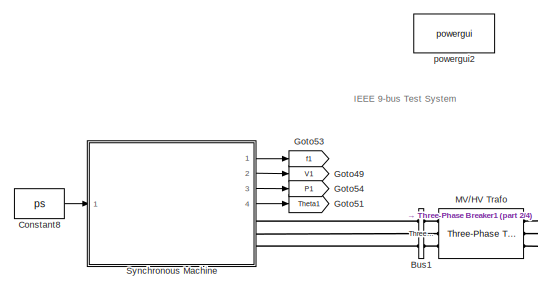
[diagram: root canvas - part 1/4, top left region]
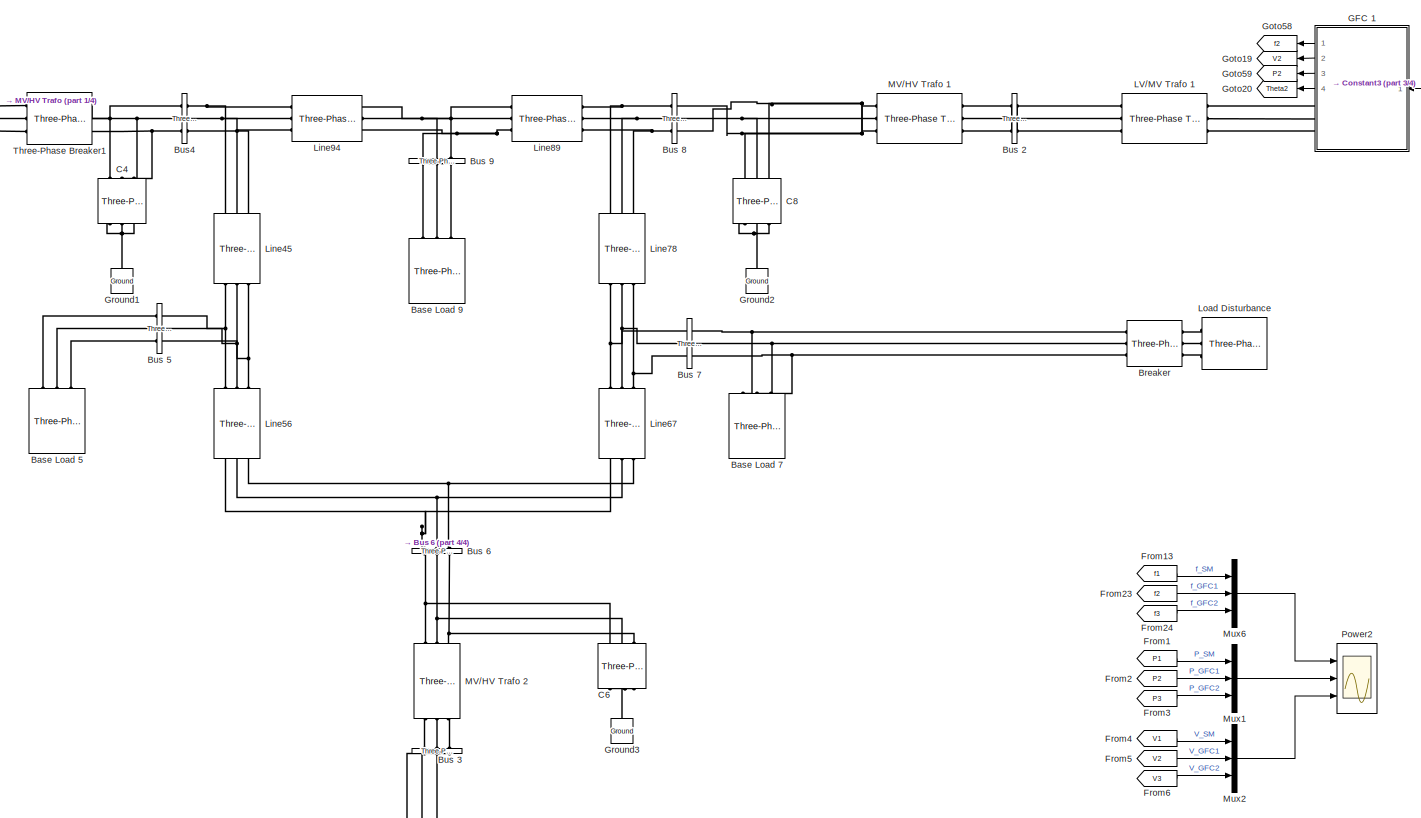
[diagram: root canvas - part 2/4, center side, full height]
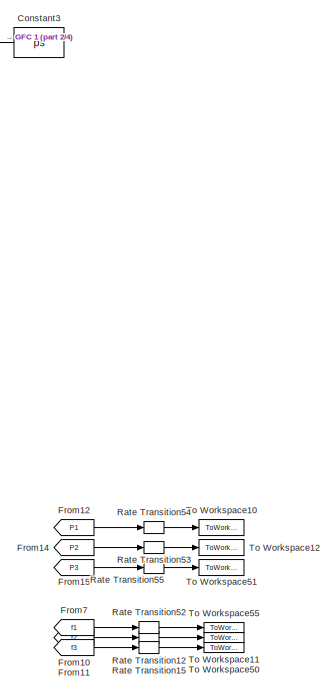
[diagram: root canvas - part 3/4, middle right region]
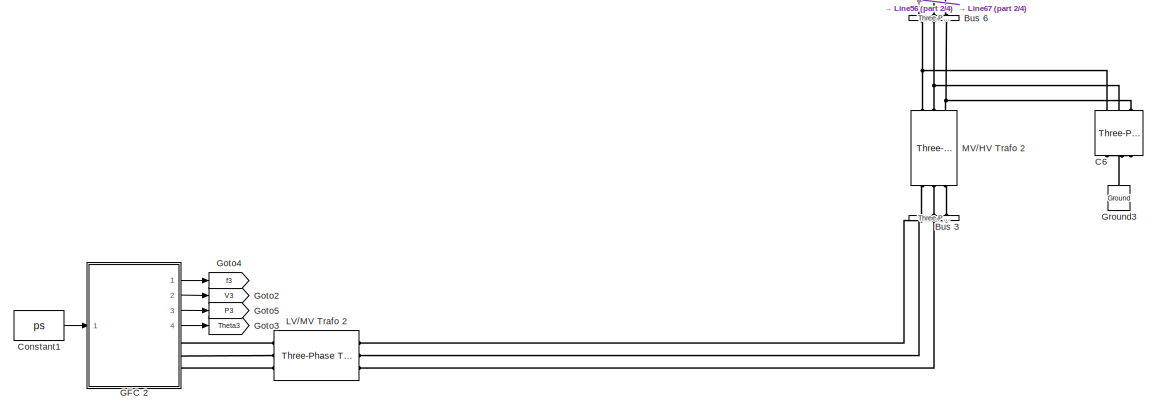
[diagram: root canvas - part 4/4, bottom left region]
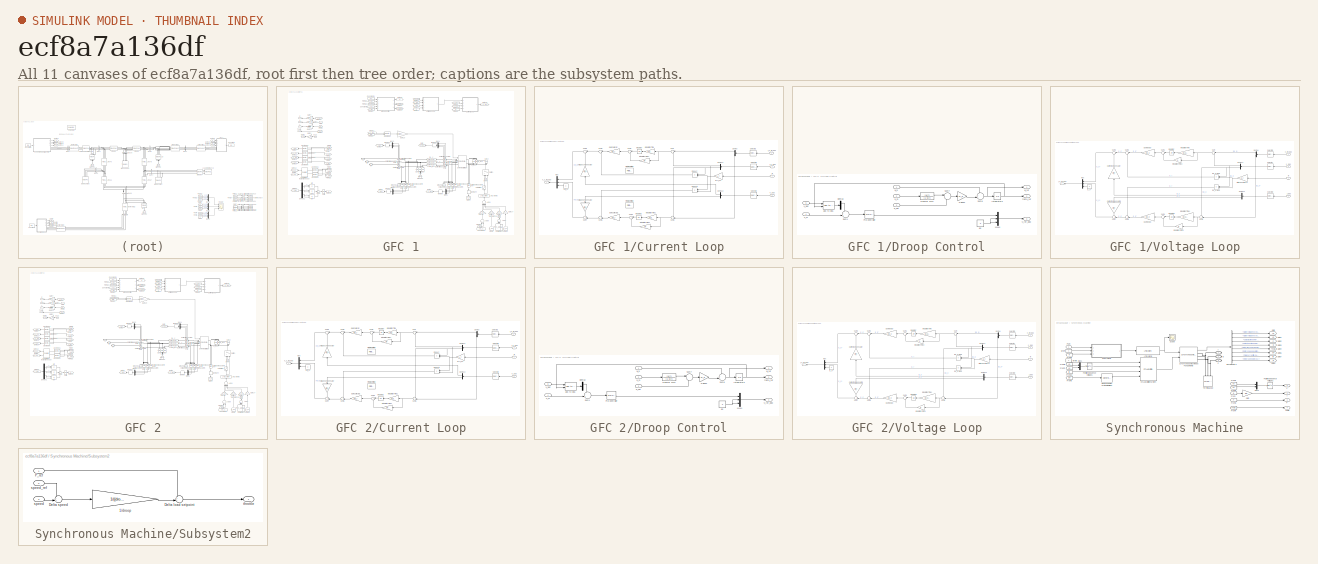
[diagram: thumbnail index - all 11 canvases of the model, root first then tree order]
MODEL slx_ecf8a7a136df
KIND model
CONFIG AbsTol = auto
CONFIG EnableMultiTasking = off
CONFIG FixedStep = auto
CONFIG MaxStep = auto
CONFIG MinStep = auto
CONFIG RelTol = 1e-3
CONFIG SampleTimeConstraint = Unconstrained
CONFIG Solver = VariableStepAuto
CONFIG SolverName = VariableStepAuto
CONFIG StartTime = 0.0
CONFIG StopTime = Tend
BLOCK [Reference] Base Load 5  REF=powerlib/Elements/Three-Phase
Parallel RLC Load
  AttributesFormatString = \n
  Ports = [0, 0, 0, 0, 0, 3]
  SourceBlock = powerlib/Elements/Three-Phase\nParallel RLC Load
  SourceProductBaseCode = PS
  SourceProductName = Simscape Power Systems
  SourceType = Three-Phase Parallel RLC Load
BLOCK [Reference] Base Load 7  REF=powerlib/Elements/Three-Phase
Parallel RLC Load
  AttributesFormatString = \n
  Ports = [0, 0, 0, 0, 0, 3]
  SourceBlock = powerlib/Elements/Three-Phase\nParallel RLC Load
  SourceProductBaseCode = PS
  SourceProductName = Simscape Power Systems
  SourceType = Three-Phase Parallel RLC Load
BLOCK [Reference] Base Load 9   REF=powerlib/Elements/Three-Phase
Parallel RLC Load
  AttributesFormatString = \n
  Ports = [0, 0, 0, 0, 0, 3]
  SourceBlock = powerlib/Elements/Three-Phase\nParallel RLC Load
  SourceProductBaseCode = PS
  SourceProductName = Simscape Power Systems
  SourceType = Three-Phase Parallel RLC Load
BLOCK [Reference] Breaker  REF=powerlib/Elements/Three-Phase Breaker
  Ports = [0, 0, 0, 0, 0, 3, 3]
  SourceBlock = powerlib/Elements/Three-Phase Breaker
  SourceProductBaseCode = PS
  SourceProductName = Simscape Power Systems
  SourceType = Three-Phase Breaker
BLOCK [Reference] Bus 2  REF=powerlib/Measurements/Three-Phase
V-I Measurement
  Ports = [0, 0, 0, 0, 0, 3, 3]
  SourceBlock = powerlib/Measurements/Three-Phase\nV-I Measurement
  SourceProductBaseCode = PS
  SourceProductName = Simscape Power Systems
  SourceType = Three-Phase VI Measurement
BLOCK [Reference] Bus 3  REF=powerlib/Measurements/Three-Phase
V-I Measurement
  Ports = [0, 0, 0, 0, 0, 3, 3]
  SourceBlock = powerlib/Measurements/Three-Phase\nV-I Measurement
  SourceProductBaseCode = PS
  SourceProductName = Simscape Power Systems
  SourceType = Three-Phase VI Measurement
BLOCK [Reference] Bus 5  REF=powerlib/Measurements/Three-Phase
V-I Measurement
  Ports = [0, 0, 0, 0, 0, 3, 3]
  SourceBlock = powerlib/Measurements/Three-Phase\nV-I Measurement
  SourceProductBaseCode = PS
  SourceProductName = Simscape Power Systems
  SourceType = Three-Phase VI Measurement
BLOCK [Reference] Bus 6  REF=powerlib/Measurements/Three-Phase
V-I Measurement
  Ports = [0, 0, 0, 0, 0, 3, 3]
  SourceBlock = powerlib/Measurements/Three-Phase\nV-I Measurement
  SourceProductBaseCode = PS
  SourceProductName = Simscape Power Systems
  SourceType = Three-Phase VI Measurement
BLOCK [Reference] Bus 7  REF=powerlib/Measurements/Three-Phase
V-I Measurement
  Ports = [0, 0, 0, 0, 0, 3, 3]
  SourceBlock = powerlib/Measurements/Three-Phase\nV-I Measurement
  SourceProductBaseCode = PS
  SourceProductName = Simscape Power Systems
  SourceType = Three-Phase VI Measurement
BLOCK [Reference] Bus 8  REF=powerlib/Measurements/Three-Phase
V-I Measurement
  Ports = [0, 0, 0, 0, 0, 3, 3]
  SourceBlock = powerlib/Measurements/Three-Phase\nV-I Measurement
  SourceProductBaseCode = PS
  SourceProductName = Simscape Power Systems
  SourceType = Three-Phase VI Measurement
BLOCK [Reference] Bus 9  REF=powerlib/Measurements/Three-Phase
V-I Measurement
  Ports = [0, 0, 0, 0, 0, 3, 3]
  SourceBlock = powerlib/Measurements/Three-Phase\nV-I Measurement
  SourceProductBaseCode = PS
  SourceProductName = Simscape Power Systems
  SourceType = Three-Phase VI Measurement
BLOCK [Reference] Bus1  REF=powerlib/Measurements/Three-Phase
V-I Measurement
  Ports = [0, 0, 0, 0, 0, 3, 3]
  SourceBlock = powerlib/Measurements/Three-Phase\nV-I Measurement
  SourceProductBaseCode = PS
  SourceProductName = Simscape Power Systems
  SourceType = Three-Phase VI Measurement
BLOCK [Reference] Bus4  REF=powerlib/Measurements/Three-Phase
V-I Measurement
  Ports = [0, 0, 0, 0, 0, 3, 3]
  SourceBlock = powerlib/Measurements/Three-Phase\nV-I Measurement
  SourceProductBaseCode = PS
  SourceProductName = Simscape Power Systems
  SourceType = Three-Phase VI Measurement
BLOCK [Reference] C4  REF=powerlib/Elements/Three-Phase
Parallel RLC Branch
  AttributesFormatString = \n
  Ports = [0, 0, 0, 0, 0, 3, 3]
  SourceBlock = powerlib/Elements/Three-Phase\nParallel RLC Branch
  SourceProductBaseCode = PS
  SourceProductName = Simscape Power Systems
  SourceType = Three-Phase Parallel RLC Branch
BLOCK [Reference] C6  REF=powerlib/Elements/Three-Phase
Parallel RLC Branch
  AttributesFormatString = \n
  Ports = [0, 0, 0, 0, 0, 3, 3]
  SourceBlock = powerlib/Elements/Three-Phase\nParallel RLC Branch
  SourceProductBaseCode = PS
  SourceProductName = Simscape Power Systems
  SourceType = Three-Phase Parallel RLC Branch
BLOCK [Reference] C8  REF=powerlib/Elements/Three-Phase
Parallel RLC Branch
  AttributesFormatString = \n
  Ports = [0, 0, 0, 0, 0, 3, 3]
  SourceBlock = powerlib/Elements/Three-Phase\nParallel RLC Branch
  SourceProductBaseCode = PS
  SourceProductName = Simscape Power Systems
  SourceType = Three-Phase Parallel RLC Branch
BLOCK [Constant] Constant1
  Value = ps
BLOCK [Constant] Constant3
  Value = ps
BLOCK [Constant] Constant8
  Value = ps
BLOCK [From] From1
  GotoTag = P1
BLOCK [From] From10
  GotoTag = f2
BLOCK [From] From11
  GotoTag = f3
BLOCK [From] From12
  GotoTag = P1
BLOCK [From] From13
  GotoTag = f1
BLOCK [From] From14
  GotoTag = P2
BLOCK [From] From15
  GotoTag = P3
BLOCK [From] From2
  GotoTag = P2
BLOCK [From] From23
  GotoTag = f2
BLOCK [From] From24
  GotoTag = f3
BLOCK [From] From3
  GotoTag = P3
BLOCK [From] From4
  GotoTag = V1
BLOCK [From] From5
  GotoTag = V2
BLOCK [From] From6
  GotoTag = V3
BLOCK [From] From7
  GotoTag = f1
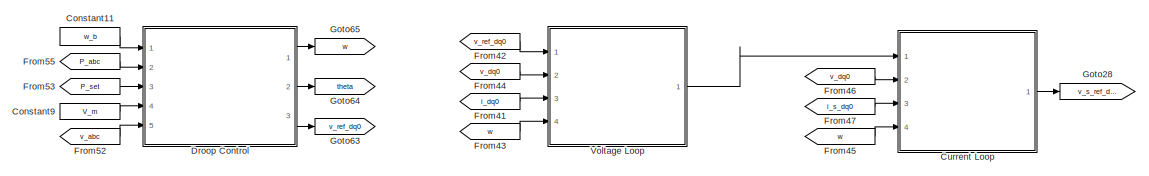
[diagram: GFC 1 - part 1/4, top center region]
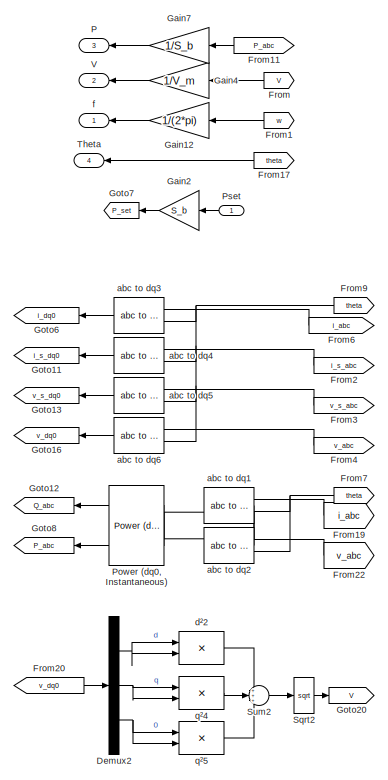
[diagram: GFC 1 - part 2/4, middle left region]
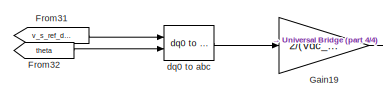
[diagram: GFC 1 - part 3/4, top center region]
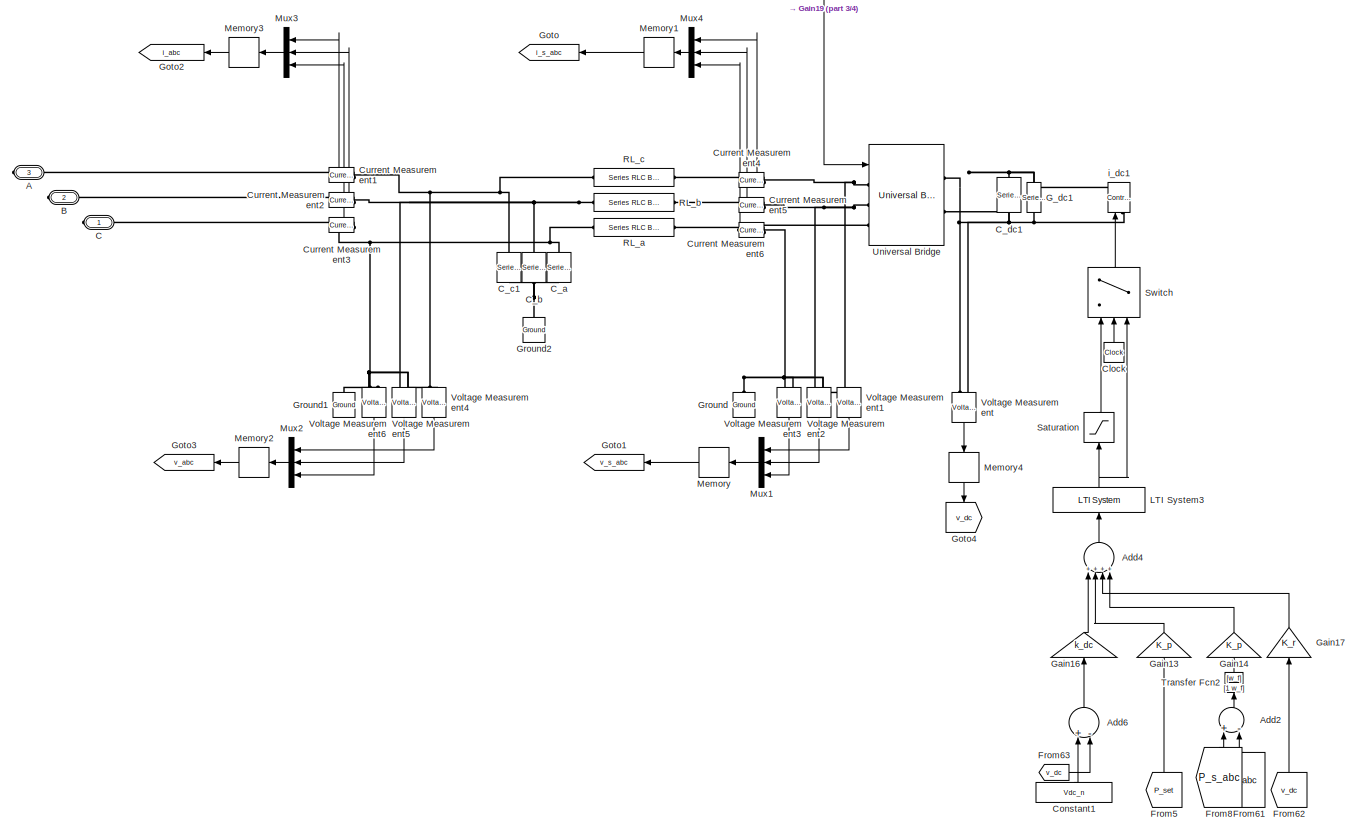
[diagram: GFC 1 - part 4/4, central region]
BLOCK [SubSystem] GFC 1
  Ports = [1, 4, 0, 0, 0, 0, 3]
  RequestExecContextInheritance = off
BLOCK [PMIOPort] GFC 1/A
  Port = 3
  Side = Right
BLOCK [Sum] GFC 1/Add2
  InputSameDT = off
  Inputs = +-
  OutDataTypeStr = Inherit: Inherit via internal rule
  Ports = [2, 1]
  SaturateOnIntegerOverflow = off
BLOCK [Sum] GFC 1/Add4
  InputSameDT = off
  Inputs = ++++
  OutDataTypeStr = Inherit: Inherit via internal rule
  Ports = [4, 1]
  SaturateOnIntegerOverflow = off
BLOCK [Sum] GFC 1/Add6
  InputSameDT = off
  Inputs = +-
  OutDataTypeStr = Inherit: Inherit via internal rule
  Ports = [2, 1]
  SaturateOnIntegerOverflow = off
BLOCK [PMIOPort] GFC 1/B
  Port = 2
  Side = Right
BLOCK [PMIOPort] GFC 1/C
  Side = Right
BLOCK [Reference] GFC 1/C_a  REF=powerlib/Elements/Series RLC Branch
  Ports = [0, 0, 0, 0, 0, 1, 1]
  SourceBlock = powerlib/Elements/Series RLC Branch
  SourceProductBaseCode = PS
  SourceProductName = Simscape Power Systems
  SourceType = Series RLC Branch
BLOCK [Reference] GFC 1/C_b  REF=powerlib/Elements/Series RLC Branch
  Ports = [0, 0, 0, 0, 0, 1, 1]
  SourceBlock = powerlib/Elements/Series RLC Branch
  SourceProductBaseCode = PS
  SourceProductName = Simscape Power Systems
  SourceType = Series RLC Branch
BLOCK [Reference] GFC 1/C_c1  REF=powerlib/Elements/Series RLC Branch
  Ports = [0, 0, 0, 0, 0, 1, 1]
  SourceBlock = powerlib/Elements/Series RLC Branch
  SourceProductBaseCode = PS
  SourceProductName = Simscape Power Systems
  SourceType = Series RLC Branch
BLOCK [Reference] GFC 1/C_dc1  REF=powerlib/Elements/Series RLC Branch
  Ports = [0, 0, 0, 0, 0, 1, 1]
  SourceBlock = powerlib/Elements/Series RLC Branch
  SourceProductBaseCode = PS
  SourceProductName = Simscape Power Systems
  SourceType = Series RLC Branch
BLOCK [Clock] GFC 1/Clock
BLOCK [Constant] GFC 1/Constant1
  Value = Vdc_n
BLOCK [Constant] GFC 1/Constant11
  Value = w_b
BLOCK [Constant] GFC 1/Constant9
  Value = V_m
BLOCK [SubSystem] GFC 1/Current Loop
  Ports = [4, 1]
  RequestExecContextInheritance = off
BLOCK [Demux] GFC 1/Current Loop/Demux
  DisplayOption = bar
  Outputs = 2
  Ports = [1, 2]
BLOCK [Demux] GFC 1/Current Loop/Demux1
  DisplayOption = bar
  Outputs = 2
  Ports = [1, 2]
BLOCK [Demux] GFC 1/Current Loop/Demux2
  DisplayOption = bar
  Outputs = 2
  Ports = [1, 2]
BLOCK [Reference] GFC 1/Current Loop/First-Order Filter2  REF=powerlib_meascontrol/Filters/First-Order
Filter
  Commented = on
  Ports = [1, 1]
  SourceBlock = powerlib_meascontrol/Filters/First-Order\nFilter
  SourceProductBaseCode = PS
  SourceProductName = Simscape Power Systems
  SourceType = First-Order Filter
BLOCK [Reference] GFC 1/Current Loop/First-Order Filter3  REF=powerlib_meascontrol/Filters/First-Order
Filter
  Commented = on
  Ports = [1, 1]
  SourceBlock = powerlib_meascontrol/Filters/First-Order\nFilter
  SourceProductBaseCode = PS
  SourceProductName = Simscape Power Systems
  SourceType = First-Order Filter
BLOCK [Gain] GFC 1/Current Loop/Gain Corrector
  Gain = Kp_i
  OutDataTypeStr = Inherit: Inherit via internal rule
  ParamDataTypeStr = Inherit: Inherit via internal rule
  SaturateOnIntegerOverflow = off
BLOCK [Gain] GFC 1/Current Loop/Gain Corrector1
  Gain = Kp_i
  OutDataTypeStr = Inherit: Inherit via internal rule
  ParamDataTypeStr = Inherit: Inherit via internal rule
  SaturateOnIntegerOverflow = off
BLOCK [Gain] GFC 1/Current Loop/Integration Time
  Gain = Ki_i / Kp_i
  OutDataTypeStr = Inherit: Inherit via internal rule
  ParamDataTypeStr = Inherit: Inherit via internal rule
  SaturateOnIntegerOverflow = off
BLOCK [Gain] GFC 1/Current Loop/Integration Time 1
  Gain = Ki_i / Kp_i
  OutDataTypeStr = Inherit: Inherit via internal rule
  ParamDataTypeStr = Inherit: Inherit via internal rule
  SaturateOnIntegerOverflow = off
BLOCK [Gain] GFC 1/Current Loop/Integration Time1
  Gain = 1/n
  OutDataTypeStr = Inherit: Inherit via internal rule
  ParamDataTypeStr = Inherit: Inherit via internal rule
  SaturateOnIntegerOverflow = off
BLOCK [Gain] GFC 1/Current Loop/Integration Time2
  Gain = 1/n
  OutDataTypeStr = Inherit: Inherit via internal rule
  ParamDataTypeStr = Inherit: Inherit via internal rule
  SaturateOnIntegerOverflow = off
BLOCK [Integrator] GFC 1/Current Loop/Integrator
  InitialCondition = 0.0001
  Ports = [1, 1]
BLOCK [Integrator] GFC 1/Current Loop/Integrator 1
  Ports = [1, 1]
BLOCK [Mux] GFC 1/Current Loop/Mux
  DisplayOption = bar
  Inputs = 3
  Ports = [3, 1]
BLOCK [Product] GFC 1/Current Loop/Product
  InputSameDT = off
  OutDataTypeStr = Inherit: Inherit via internal rule
  Ports = [2, 1]
  SaturateOnIntegerOverflow = off
BLOCK [Product] GFC 1/Current Loop/Product1
  InputSameDT = off
  OutDataTypeStr = Inherit: Inherit via internal rule
  Ports = [2, 1]
  SaturateOnIntegerOverflow = off
BLOCK [Selector] GFC 1/Current Loop/Selector1
  IndexOptions = Index vector (dialog)
  Indices = [1 2]
  InputPortWidth = 3
  OutputSizes = 1
  Ports = [1, 1]
BLOCK [Selector] GFC 1/Current Loop/Selector2
  IndexOptions = Index vector (dialog)
  Indices = [1 2]
  InputPortWidth = 3
  OutputSizes = 1
  Ports = [1, 1]
BLOCK [Selector] GFC 1/Current Loop/Selector3
  IndexOptions = Index vector (dialog)
  Indices = [1 2]
  InputPortWidth = 3
  OutputSizes = 1
  Ports = [1, 1]
BLOCK [Sum] GFC 1/Current Loop/Sum
  IconShape = round
  InputSameDT = off
  Inputs = |+-
  OutDataTypeStr = Inherit: Inherit via internal rule
  Ports = [2, 1]
  SaturateOnIntegerOverflow = off
BLOCK [Sum] GFC 1/Current Loop/Sum1
  IconShape = round
  InputSameDT = off
  Inputs = |++
  OutDataTypeStr = Inherit: Inherit via internal rule
  Ports = [2, 1]
  SaturateOnIntegerOverflow = off
BLOCK [Sum] GFC 1/Current Loop/Sum2
  IconShape = round
  InputSameDT = off
  Inputs = |+-
  OutDataTypeStr = Inherit: Inherit via internal rule
  Ports = [2, 1]
  SaturateOnIntegerOverflow = off
BLOCK [Sum] GFC 1/Current Loop/Sum3
  IconShape = round
  InputSameDT = off
  Inputs = |++
  OutDataTypeStr = Inherit: Inherit via internal rule
  Ports = [2, 1]
  SaturateOnIntegerOverflow = off
BLOCK [Sum] GFC 1/Current Loop/Sum4
  IconShape = round
  InputSameDT = off
  Inputs = |++
  OutDataTypeStr = Inherit: Inherit via internal rule
  Ports = [2, 1]
  SaturateOnIntegerOverflow = off
BLOCK [Sum] GFC 1/Current Loop/Sum5
  IconShape = round
  InputSameDT = off
  Inputs = ++|
  OutDataTypeStr = Inherit: Inherit via internal rule
  Ports = [2, 1]
  SaturateOnIntegerOverflow = off
BLOCK [Sum] GFC 1/Current Loop/Sum6
  IconShape = round
  InputSameDT = off
  Inputs = -+|
  OutDataTypeStr = Inherit: Inherit via internal rule
  Ports = [2, 1]
  SaturateOnIntegerOverflow = off
BLOCK [Sum] GFC 1/Current Loop/Sum7
  IconShape = round
  InputSameDT = off
  Inputs = ++|
  OutDataTypeStr = Inherit: Inherit via internal rule
  Ports = [2, 1]
  SaturateOnIntegerOverflow = off
BLOCK [Constant] GFC 1/Current Loop/Vm_0*
  Value = 0
BLOCK [Gain] GFC 1/Current Loop/Voltage Compensator 1
  Gain = Kff_v
  OutDataTypeStr = Inherit: Inherit via internal rule
  ParamDataTypeStr = Inherit: Inherit via internal rule
  SaturateOnIntegerOverflow = off
BLOCK [Gain] GFC 1/Current Loop/Voltage compensator
  Gain = Kff_v
  OutDataTypeStr = Inherit: Inherit via internal rule
  ParamDataTypeStr = Inherit: Inherit via internal rule
  SaturateOnIntegerOverflow = off
BLOCK [Inport] GFC 1/Current Loop/i_s_dq0
  IconDisplay = Port number
  Port = 3
BLOCK [Inport] GFC 1/Current Loop/i_s_ref_dq0
  IconDisplay = Port number
BLOCK [Inport] GFC 1/Current Loop/v_dq0
  IconDisplay = Port number
  Port = 2
BLOCK [Outport] GFC 1/Current Loop/v_s_ref_dq0
  IconDisplay = Port number
BLOCK [Inport] GFC 1/Current Loop/w
  IconDisplay = Port number
  Port = 4
BLOCK [Gain] GFC 1/Current Loop/w*Lf_pu
  Gain = L_f
  OutDataTypeStr = Inherit: Inherit via internal rule
  ParamDataTypeStr = Inherit: Inherit via internal rule
  SaturateOnIntegerOverflow = off
BLOCK [Reference] GFC 1/Current Measurement1  REF=powerlib/Measurements/Current Measurement
  Ports = [0, 1, 0, 0, 0, 1, 1]
  SourceBlock = powerlib/Measurements/Current Measurement
  SourceProductBaseCode = PS
  SourceProductName = Simscape Power Systems
  SourceType = Current Measurement
  UserDataPersistent = on
BLOCK [Reference] GFC 1/Current Measurement2  REF=powerlib/Measurements/Current Measurement
  Ports = [0, 1, 0, 0, 0, 1, 1]
  SourceBlock = powerlib/Measurements/Current Measurement
  SourceProductBaseCode = PS
  SourceProductName = Simscape Power Systems
  SourceType = Current Measurement
  UserDataPersistent = on
BLOCK [Reference] GFC 1/Current Measurement3  REF=powerlib/Measurements/Current Measurement
  Ports = [0, 1, 0, 0, 0, 1, 1]
  SourceBlock = powerlib/Measurements/Current Measurement
  SourceProductBaseCode = PS
  SourceProductName = Simscape Power Systems
  SourceType = Current Measurement
  UserDataPersistent = on
BLOCK [Reference] GFC 1/Current Measurement4  REF=powerlib/Measurements/Current Measurement
  Ports = [0, 1, 0, 0, 0, 1, 1]
  SourceBlock = powerlib/Measurements/Current Measurement
  SourceProductBaseCode = PS
  SourceProductName = Simscape Power Systems
  SourceType = Current Measurement
  UserDataPersistent = on
BLOCK [Reference] GFC 1/Current Measurement5  REF=powerlib/Measurements/Current Measurement
  Ports = [0, 1, 0, 0, 0, 1, 1]
  SourceBlock = powerlib/Measurements/Current Measurement
  SourceProductBaseCode = PS
  SourceProductName = Simscape Power Systems
  SourceType = Current Measurement
  UserDataPersistent = on
BLOCK [Reference] GFC 1/Current Measurement6  REF=powerlib/Measurements/Current Measurement
  Ports = [0, 1, 0, 0, 0, 1, 1]
  SourceBlock = powerlib/Measurements/Current Measurement
  SourceProductBaseCode = PS
  SourceProductName = Simscape Power Systems
  SourceType = Current Measurement
  UserDataPersistent = on
BLOCK [Demux] GFC 1/Demux2
  DisplayOption = bar
  Outputs = 3
  Ports = [1, 3]
BLOCK [SubSystem] GFC 1/Droop Control
  Ports = [5, 3]
  RequestExecContextInheritance = off
BLOCK [Demux] GFC 1/Droop Control/Demux
  DisplayOption = bar
  Outputs = 3
  Ports = [1, 3]
BLOCK [Gain] GFC 1/Droop Control/Gain20
  Gain = m_p
  OutDataTypeStr = Inherit: Inherit via internal rule
  ParamDataTypeStr = Inherit: Inherit via internal rule
  SaturateOnIntegerOverflow = off
BLOCK [Integrator] GFC 1/Droop Control/Integrator3
  Ports = [1, 1]
BLOCK [Mux] GFC 1/Droop Control/Mux4
  DisplayOption = bar
  Inputs = 3
  Ports = [3, 1]
BLOCK [Reference] GFC 1/Droop Control/PID Controller  REF=simulink/Continuous/PID Controller
  Ports = [1, 1]
  SourceBlock = simulink/Continuous/PID Controller
  SourceProductBaseCode = SL
  SourceProductName = Simulink
  SourceType = PID 1dof
BLOCK [Sum] GFC 1/Droop Control/Sum1
  IconShape = round
  InputSameDT = off
  Inputs = -+|
  OutDataTypeStr = Inherit: Inherit via internal rule
  Ports = [2, 1]
  SaturateOnIntegerOverflow = off
BLOCK [Sum] GFC 1/Droop Control/Sum7
  IconShape = round
  InputSameDT = off
  Inputs = |+-
  OutDataTypeStr = Inherit: Inherit via internal rule
  Ports = [2, 1]
  SaturateOnIntegerOverflow = off
BLOCK [Sum] GFC 1/Droop Control/Sum8
  IconShape = round
  InputSameDT = off
  Inputs = +-|
  OutDataTypeStr = Inherit: Inherit via internal rule
  Ports = [2, 1]
  SaturateOnIntegerOverflow = off
BLOCK [TransferFcn] GFC 1/Droop Control/Transfer Fcn4
  Denominator = [1 w_f]
  Numerator = [w_f]
BLOCK [Inport] GFC 1/Droop Control/V_abc
  IconDisplay = Port number
  Port = 5
BLOCK [Reference] GFC 1/Droop Control/abc to dq1  REF=powerlib_meascontrol/Transformations/abc to dq0
  Ports = [2, 1]
  SourceBlock = powerlib_meascontrol/Transformations/abc to dq0
  SourceProductBaseCode = PS
  SourceProductName = Simscape Power Systems
  SourceType = abc to dq0 Transformation
BLOCK [Inport] GFC 1/Droop Control/p_m
  IconDisplay = Port number
  Port = 2
BLOCK [Inport] GFC 1/Droop Control/p_set
  IconDisplay = Port number
  Port = 3
BLOCK [Constant] GFC 1/Droop Control/q0
  Value = 0
BLOCK [Outport] GFC 1/Droop Control/theta_ref
  IconDisplay = Port number
  Port = 2
BLOCK [Inport] GFC 1/Droop Control/v_m
  IconDisplay = Port number
  Port = 4
BLOCK [Outport] GFC 1/Droop Control/v_ref_dq0
  IconDisplay = Port number
  Port = 3
BLOCK [Inport] GFC 1/Droop Control/w_b
  IconDisplay = Port number
BLOCK [Outport] GFC 1/Droop Control/w_ref
  IconDisplay = Port number
BLOCK [From] GFC 1/From
  GotoTag = V
BLOCK [From] GFC 1/From1
  GotoTag = w
BLOCK [From] GFC 1/From11
  GotoTag = P_abc
BLOCK [From] GFC 1/From17
  GotoTag = theta
BLOCK [From] GFC 1/From19
  GotoTag = i_abc
BLOCK [From] GFC 1/From2
  GotoTag = i_s_abc
BLOCK [From] GFC 1/From20
  GotoTag = v_dq0
BLOCK [From] GFC 1/From22
  GotoTag = v_abc
BLOCK [From] GFC 1/From3
  GotoTag = v_s_abc
BLOCK [From] GFC 1/From31
  GotoTag = v_s_ref_dq0
BLOCK [From] GFC 1/From32
  GotoTag = theta
BLOCK [From] GFC 1/From4
  GotoTag = v_abc
BLOCK [From] GFC 1/From41
  GotoTag = i_dq0
BLOCK [From] GFC 1/From42
  GotoTag = v_ref_dq0
BLOCK [From] GFC 1/From43
  GotoTag = w
BLOCK [From] GFC 1/From44
  GotoTag = v_dq0
BLOCK [From] GFC 1/From45
  GotoTag = w
BLOCK [From] GFC 1/From46
  GotoTag = v_dq0
BLOCK [From] GFC 1/From47
  GotoTag = i_s_dq0
BLOCK [From] GFC 1/From5
  GotoTag = P_set
BLOCK [From] GFC 1/From52
  GotoTag = v_abc
BLOCK [From] GFC 1/From53
  GotoTag = P_set
BLOCK [From] GFC 1/From55
  GotoTag = P_abc
BLOCK [From] GFC 1/From6
  GotoTag = i_abc
BLOCK [From] GFC 1/From61
  GotoTag = P_abc
BLOCK [From] GFC 1/From62
  GotoTag = v_dc
BLOCK [From] GFC 1/From63
  GotoTag = v_dc
BLOCK [From] GFC 1/From7
  GotoTag = theta
BLOCK [From] GFC 1/From8
  GotoTag = P_s_abc
BLOCK [From] GFC 1/From9
  GotoTag = theta
BLOCK [Reference] GFC 1/G_dc1  REF=powerlib/Elements/Series RLC Branch
  Ports = [0, 0, 0, 0, 0, 1, 1]
  SourceBlock = powerlib/Elements/Series RLC Branch
  SourceProductBaseCode = PS
  SourceProductName = Simscape Power Systems
  SourceType = Series RLC Branch
BLOCK [Gain] GFC 1/Gain12
  Gain = 1/(2*pi)
  OutDataTypeStr = Inherit: Inherit via internal rule
  ParamDataTypeStr = Inherit: Inherit via internal rule
  SaturateOnIntegerOverflow = off
BLOCK [Gain] GFC 1/Gain13
  Gain = K_p
  OutDataTypeStr = Inherit: Inherit via internal rule
  ParamDataTypeStr = Inherit: Inherit via internal rule
  SaturateOnIntegerOverflow = off
BLOCK [Gain] GFC 1/Gain14
  Gain = K_p
  OutDataTypeStr = Inherit: Inherit via internal rule
  ParamDataTypeStr = Inherit: Inherit via internal rule
  SaturateOnIntegerOverflow = off
BLOCK [Gain] GFC 1/Gain16
  Gain = k_dc
  OutDataTypeStr = Inherit: Inherit via internal rule
  ParamDataTypeStr = Inherit: Inherit via internal rule
  SaturateOnIntegerOverflow = off
BLOCK [Gain] GFC 1/Gain17
  Gain = K_r
  OutDataTypeStr = Inherit: Inherit via internal rule
  ParamDataTypeStr = Inherit: Inherit via internal rule
  SaturateOnIntegerOverflow = off
BLOCK [Gain] GFC 1/Gain19
  Gain = 2/(Vdc_n)
  OutDataTypeStr = Inherit: Inherit via internal rule
  ParamDataTypeStr = Inherit: Inherit via internal rule
  SaturateOnIntegerOverflow = off
BLOCK [Gain] GFC 1/Gain2
  Gain = S_b
  OutDataTypeStr = Inherit: Inherit via internal rule
  ParamDataTypeStr = Inherit: Inherit via internal rule
  SaturateOnIntegerOverflow = off
BLOCK [Gain] GFC 1/Gain4
  Gain = 1/V_m
  OutDataTypeStr = Inherit: Inherit via internal rule
  ParamDataTypeStr = Inherit: Inherit via internal rule
  SaturateOnIntegerOverflow = off
BLOCK [Gain] GFC 1/Gain7
  Gain = 1/S_b
  OutDataTypeStr = Inherit: Inherit via internal rule
  ParamDataTypeStr = Inherit: Inherit via internal rule
  SaturateOnIntegerOverflow = off
BLOCK [Goto] GFC 1/Goto
  GotoTag = i_s_abc
BLOCK [Goto] GFC 1/Goto1
  GotoTag = v_s_abc
BLOCK [Goto] GFC 1/Goto11
  GotoTag = i_s_dq0
BLOCK [Goto] GFC 1/Goto12
  GotoTag = Q_abc
BLOCK [Goto] GFC 1/Goto13
  GotoTag = v_s_dq0
BLOCK [Goto] GFC 1/Goto16
  GotoTag = v_dq0
BLOCK [Goto] GFC 1/Goto2
  GotoTag = i_abc
BLOCK [Goto] GFC 1/Goto20
  GotoTag = V
BLOCK [Goto] GFC 1/Goto28
  GotoTag = v_s_ref_dq0
BLOCK [Goto] GFC 1/Goto3
  GotoTag = v_abc
BLOCK [Goto] GFC 1/Goto4
  GotoTag = v_dc
BLOCK [Goto] GFC 1/Goto6
  GotoTag = i_dq0
BLOCK [Goto] GFC 1/Goto63
  GotoTag = v_ref_dq0
BLOCK [Goto] GFC 1/Goto64
  GotoTag = theta
BLOCK [Goto] GFC 1/Goto65
  GotoTag = w
BLOCK [Goto] GFC 1/Goto7
  GotoTag = P_set
BLOCK [Goto] GFC 1/Goto8
  GotoTag = P_abc
BLOCK [Reference] GFC 1/Ground  REF=powerlib/Elements/Ground
  Ports = [0, 0, 0, 0, 0, 1]
  SourceBlock = powerlib/Elements/Ground
  SourceProductBaseCode = PS
  SourceProductName = Simscape Power Systems
  SourceType = Ground
BLOCK [Reference] GFC 1/Ground1  REF=powerlib/Elements/Ground
  Ports = [0, 0, 0, 0, 0, 1]
  SourceBlock = powerlib/Elements/Ground
  SourceProductBaseCode = PS
  SourceProductName = Simscape Power Systems
  SourceType = Ground
BLOCK [Reference] GFC 1/Ground2  REF=powerlib/Elements/Ground
  Ports = [0, 0, 0, 0, 0, 1]
  SourceBlock = powerlib/Elements/Ground
  SourceProductBaseCode = PS
  SourceProductName = Simscape Power Systems
  SourceType = Ground
BLOCK [Reference] GFC 1/LTI System3  REF=cstblocks/LTI System
  Ports = [1, 1]
  SourceBlock = cstblocks/LTI System
  SourceProductBaseCode = CT
  SourceProductName = Control System Toolbox
  SourceType = LTI Block
BLOCK [Memory] GFC 1/Memory
BLOCK [Memory] GFC 1/Memory1
BLOCK [Memory] GFC 1/Memory2
BLOCK [Memory] GFC 1/Memory3
BLOCK [Memory] GFC 1/Memory4
BLOCK [Mux] GFC 1/Mux1
  DisplayOption = bar
  Inputs = 3
  Ports = [3, 1]
BLOCK [Mux] GFC 1/Mux2
  DisplayOption = bar
  Inputs = 3
  Ports = [3, 1]
BLOCK [Mux] GFC 1/Mux3
  DisplayOption = bar
  Inputs = 3
  Ports = [3, 1]
BLOCK [Mux] GFC 1/Mux4
  DisplayOption = bar
  Inputs = 3
  Ports = [3, 1]
BLOCK [Outport] GFC 1/P
  IconDisplay = Port number
  Port = 3
BLOCK [Reference] GFC 1/Power (dq0, Instantaneous)  REF=powerlib_meascontrol/Measurements/Power
(dq0, Instantaneous)
  Ports = [2, 2]
  SourceBlock = powerlib_meascontrol/Measurements/Power\n(dq0, Instantaneous)
  SourceProductBaseCode = PS
  SourceProductName = Simscape Power Systems
  SourceType = Power (dq0, Instantaneous)
BLOCK [Inport] GFC 1/Pset
  IconDisplay = Port number
BLOCK [Reference] GFC 1/RL_a  REF=powerlib/Elements/Series RLC Branch
  Ports = [0, 0, 0, 0, 0, 1, 1]
  SourceBlock = powerlib/Elements/Series RLC Branch
  SourceProductBaseCode = PS
  SourceProductName = Simscape Power Systems
  SourceType = Series RLC Branch
BLOCK [Reference] GFC 1/RL_b  REF=powerlib/Elements/Series RLC Branch
  Ports = [0, 0, 0, 0, 0, 1, 1]
  SourceBlock = powerlib/Elements/Series RLC Branch
  SourceProductBaseCode = PS
  SourceProductName = Simscape Power Systems
  SourceType = Series RLC Branch
BLOCK [Reference] GFC 1/RL_c  REF=powerlib/Elements/Series RLC Branch
  Ports = [0, 0, 0, 0, 0, 1, 1]
  SourceBlock = powerlib/Elements/Series RLC Branch
  SourceProductBaseCode = PS
  SourceProductName = Simscape Power Systems
  SourceType = Series RLC Branch
BLOCK [Saturate] GFC 1/Saturation
  InputPortMap = u0
  LowerLimit = i_ll
  Ports = [1, 1]
  UpperLimit = i_ul
BLOCK [Sqrt] GFC 1/Sqrt2
BLOCK [Sum] GFC 1/Sum2
  IconShape = round
  Inputs = +++
  Ports = [3, 1]
BLOCK [Switch] GFC 1/Switch
  Criteria = u2 > Threshold
  InputSameDT = off
  SaturateOnIntegerOverflow = off
  Threshold = T_en
BLOCK [Outport] GFC 1/Theta
  IconDisplay = Port number
  Port = 4
BLOCK [TransferFcn] GFC 1/Transfer Fcn2
  Denominator = [1 w_f]
  Numerator = [w_f]
BLOCK [Reference] GFC 1/Universal Bridge  REF=powerlib/Power
Electronics/Universal Bridge
  Ports = [1, 0, 0, 0, 0, 3, 2]
  SourceBlock = powerlib/Power\nElectronics/Universal Bridge
  SourceProductBaseCode = PS
  SourceProductName = Simscape Power Systems
  SourceType = Universal Bridge
BLOCK [Outport] GFC 1/V
  IconDisplay = Port number
  Port = 2
BLOCK [SubSystem] GFC 1/Voltage Loop
  Ports = [4, 1]
  RequestExecContextInheritance = off
BLOCK [Gain] GFC 1/Voltage Loop/Current Compensator
  Gain = Kff_i
  OutDataTypeStr = Inherit: Inherit via internal rule
  ParamDataTypeStr = Inherit: Inherit via internal rule
  SaturateOnIntegerOverflow = off
BLOCK [Gain] GFC 1/Voltage Loop/Current Compensator1
  Gain = Kff_i
  OutDataTypeStr = Inherit: Inherit via internal rule
  ParamDataTypeStr = Inherit: Inherit via internal rule
  SaturateOnIntegerOverflow = off
BLOCK [Gain] GFC 1/Voltage Loop/Damping (d)
  Gain = Kp_v
  OutDataTypeStr = Inherit: Inherit via internal rule
  ParamDataTypeStr = Inherit: Inherit via internal rule
  SaturateOnIntegerOverflow = off
BLOCK [Gain] GFC 1/Voltage Loop/Damping (q)
  Gain = Kp_v
  OutDataTypeStr = Inherit: Inherit via internal rule
  ParamDataTypeStr = Inherit: Inherit via internal rule
  SaturateOnIntegerOverflow = off
BLOCK [Demux] GFC 1/Voltage Loop/Demux
  DisplayOption = bar
  Outputs = 2
  Ports = [1, 2]
BLOCK [Demux] GFC 1/Voltage Loop/Demux1
  DisplayOption = bar
  Outputs = 2
  Ports = [1, 2]
BLOCK [Demux] GFC 1/Voltage Loop/Demux2
  DisplayOption = bar
  Outputs = 2
  Ports = [1, 2]
BLOCK [Product] GFC 1/Voltage Loop/Eg_d * (wCf)
  InputSameDT = off
  OutDataTypeStr = Inherit: Inherit via internal rule
  Ports = [2, 1]
  SaturateOnIntegerOverflow = off
BLOCK [Product] GFC 1/Voltage Loop/Eg_q * (wCf) 
  InputSameDT = off
  OutDataTypeStr = Inherit: Inherit via internal rule
  Ports = [2, 1]
  SaturateOnIntegerOverflow = off
BLOCK [Gain] GFC 1/Voltage Loop/Filter capacitance
  Gain = C_f
  OutDataTypeStr = Inherit: Inherit via internal rule
  ParamDataTypeStr = Inherit: Inherit via internal rule
  SaturateOnIntegerOverflow = off
BLOCK [Gain] GFC 1/Voltage Loop/Integration Time
  Gain = Ki_v / Kp_v
  OutDataTypeStr = Inherit: Inherit via internal rule
  ParamDataTypeStr = Inherit: Inherit via internal rule
  SaturateOnIntegerOverflow = off
BLOCK [Gain] GFC 1/Voltage Loop/Integration Time1
  Gain = Ki_v / Kp_v
  OutDataTypeStr = Inherit: Inherit via internal rule
  ParamDataTypeStr = Inherit: Inherit via internal rule
  SaturateOnIntegerOverflow = off
BLOCK [Gain] GFC 1/Voltage Loop/Integration Time2
  Gain = n
  OutDataTypeStr = Inherit: Inherit via internal rule
  ParamDataTypeStr = Inherit: Inherit via internal rule
  SaturateOnIntegerOverflow = off
BLOCK [Gain] GFC 1/Voltage Loop/Integration Time3
  Gain = n
  OutDataTypeStr = Inherit: Inherit via internal rule
  ParamDataTypeStr = Inherit: Inherit via internal rule
  SaturateOnIntegerOverflow = off
BLOCK [Integrator] GFC 1/Voltage Loop/Integrator
  Ports = [1, 1]
BLOCK [Integrator] GFC 1/Voltage Loop/Integrator1
  Ports = [1, 1]
BLOCK [Constant] GFC 1/Voltage Loop/Is_0*
  Value = 0
BLOCK [Mux] GFC 1/Voltage Loop/Mux
  DisplayOption = bar
  Inputs = 3
  Ports = [3, 1]
BLOCK [Selector] GFC 1/Voltage Loop/Selector
  IndexOptions = Index vector (dialog)
  Indices = [1 2]
  InputPortWidth = 3
  OutputSizes = 1
  Ports = [1, 1]
BLOCK [Selector] GFC 1/Voltage Loop/Selector1
  IndexOptions = Index vector (dialog)
  Indices = [1 2]
  InputPortWidth = 3
  OutputSizes = 1
  Ports = [1, 1]
BLOCK [Selector] GFC 1/Voltage Loop/Selector2
  IndexOptions = Index vector (dialog)
  Indices = [1 2]
  InputPortWidth = 3
  OutputSizes = 1
  Ports = [1, 1]
BLOCK [Sum] GFC 1/Voltage Loop/Sum
  IconShape = round
  InputSameDT = off
  Inputs = |+-
  OutDataTypeStr = Inherit: Inherit via internal rule
  Ports = [2, 1]
  SaturateOnIntegerOverflow = off
BLOCK [Sum] GFC 1/Voltage Loop/Sum1
  IconShape = round
  InputSameDT = off
  Inputs = |++
  OutDataTypeStr = Inherit: Inherit via internal rule
  Ports = [2, 1]
  SaturateOnIntegerOverflow = off
BLOCK [Sum] GFC 1/Voltage Loop/Sum2
  IconShape = round
  InputSameDT = off
  Inputs = |+-
  OutDataTypeStr = Inherit: Inherit via internal rule
  Ports = [2, 1]
  SaturateOnIntegerOverflow = off
BLOCK [Sum] GFC 1/Voltage Loop/Sum3
  IconShape = round
  InputSameDT = off
  Inputs = |++
  OutDataTypeStr = Inherit: Inherit via internal rule
  Ports = [2, 1]
  SaturateOnIntegerOverflow = off
BLOCK [Sum] GFC 1/Voltage Loop/Sum4
  IconShape = round
  InputSameDT = off
  Inputs = |++
  OutDataTypeStr = Inherit: Inherit via internal rule
  Ports = [2, 1]
  SaturateOnIntegerOverflow = off
BLOCK [Sum] GFC 1/Voltage Loop/Sum5
  IconShape = round
  InputSameDT = off
  Inputs = ++|
  OutDataTypeStr = Inherit: Inherit via internal rule
  Ports = [2, 1]
  SaturateOnIntegerOverflow = off
BLOCK [Sum] GFC 1/Voltage Loop/Sum6
  IconShape = round
  InputSameDT = off
  Inputs = -+|
  OutDataTypeStr = Inherit: Inherit via internal rule
  Ports = [2, 1]
  SaturateOnIntegerOverflow = off
BLOCK [Sum] GFC 1/Voltage Loop/Sum7
  IconShape = round
  InputSameDT = off
  Inputs = ++|
  OutDataTypeStr = Inherit: Inherit via internal rule
  Ports = [2, 1]
  SaturateOnIntegerOverflow = off
BLOCK [Inport] GFC 1/Voltage Loop/i_dq0
  IconDisplay = Port number
  Port = 3
BLOCK [Outport] GFC 1/Voltage Loop/i_s_ref_dq0
  IconDisplay = Port number
BLOCK [Inport] GFC 1/Voltage Loop/v_dq0
  IconDisplay = Port number
  Port = 2
BLOCK [Inport] GFC 1/Voltage Loop/v_ref_dq0
  IconDisplay = Port number
BLOCK [Inport] GFC 1/Voltage Loop/w
  IconDisplay = Port number
  Port = 4
BLOCK [Reference] GFC 1/Voltage Measurement  REF=powerlib/Measurements/Voltage Measurement
  Ports = [0, 1, 0, 0, 0, 2]
  SourceBlock = powerlib/Measurements/Voltage Measurement
  SourceProductBaseCode = PS
  SourceProductName = Simscape Power Systems
  SourceType = Voltage Measurement
  UserDataPersistent = on
BLOCK [Reference] GFC 1/Voltage Measurement1  REF=powerlib/Measurements/Voltage Measurement
  Ports = [0, 1, 0, 0, 0, 2]
  SourceBlock = powerlib/Measurements/Voltage Measurement
  SourceProductBaseCode = PS
  SourceProductName = Simscape Power Systems
  SourceType = Voltage Measurement
  UserDataPersistent = on
BLOCK [Reference] GFC 1/Voltage Measurement2  REF=powerlib/Measurements/Voltage Measurement
  Ports = [0, 1, 0, 0, 0, 2]
  SourceBlock = powerlib/Measurements/Voltage Measurement
  SourceProductBaseCode = PS
  SourceProductName = Simscape Power Systems
  SourceType = Voltage Measurement
  UserDataPersistent = on
BLOCK [Reference] GFC 1/Voltage Measurement3  REF=powerlib/Measurements/Voltage Measurement
  Ports = [0, 1, 0, 0, 0, 2]
  SourceBlock = powerlib/Measurements/Voltage Measurement
  SourceProductBaseCode = PS
  SourceProductName = Simscape Power Systems
  SourceType = Voltage Measurement
  UserDataPersistent = on
BLOCK [Reference] GFC 1/Voltage Measurement4  REF=powerlib/Measurements/Voltage Measurement
  Ports = [0, 1, 0, 0, 0, 2]
  SourceBlock = powerlib/Measurements/Voltage Measurement
  SourceProductBaseCode = PS
  SourceProductName = Simscape Power Systems
  SourceType = Voltage Measurement
  UserDataPersistent = on
BLOCK [Reference] GFC 1/Voltage Measurement5  REF=powerlib/Measurements/Voltage Measurement
  Ports = [0, 1, 0, 0, 0, 2]
  SourceBlock = powerlib/Measurements/Voltage Measurement
  SourceProductBaseCode = PS
  SourceProductName = Simscape Power Systems
  SourceType = Voltage Measurement
  UserDataPersistent = on
BLOCK [Reference] GFC 1/Voltage Measurement6  REF=powerlib/Measurements/Voltage Measurement
  Ports = [0, 1, 0, 0, 0, 2]
  SourceBlock = powerlib/Measurements/Voltage Measurement
  SourceProductBaseCode = PS
  SourceProductName = Simscape Power Systems
  SourceType = Voltage Measurement
  UserDataPersistent = on
BLOCK [Reference] GFC 1/abc to dq1  REF=powerlib_meascontrol/Transformations/abc to dq0
  Ports = [2, 1]
  SourceBlock = powerlib_meascontrol/Transformations/abc to dq0
  SourceProductBaseCode = PS
  SourceProductName = Simscape Power Systems
  SourceType = abc to dq0 Transformation
BLOCK [Reference] GFC 1/abc to dq2  REF=powerlib_meascontrol/Transformations/abc to dq0
  Ports = [2, 1]
  SourceBlock = powerlib_meascontrol/Transformations/abc to dq0
  SourceProductBaseCode = PS
  SourceProductName = Simscape Power Systems
  SourceType = abc to dq0 Transformation
BLOCK [Reference] GFC 1/abc to dq3  REF=powerlib_meascontrol/Transformations/abc to dq0
  Ports = [2, 1]
  SourceBlock = powerlib_meascontrol/Transformations/abc to dq0
  SourceProductBaseCode = PS
  SourceProductName = Simscape Power Systems
  SourceType = abc to dq0 Transformation
BLOCK [Reference] GFC 1/abc to dq4  REF=powerlib_meascontrol/Transformations/abc to dq0
  Ports = [2, 1]
  SourceBlock = powerlib_meascontrol/Transformations/abc to dq0
  SourceProductBaseCode = PS
  SourceProductName = Simscape Power Systems
  SourceType = abc to dq0 Transformation
BLOCK [Reference] GFC 1/abc to dq5  REF=powerlib_meascontrol/Transformations/abc to dq0
  Ports = [2, 1]
  SourceBlock = powerlib_meascontrol/Transformations/abc to dq0
  SourceProductBaseCode = PS
  SourceProductName = Simscape Power Systems
  SourceType = abc to dq0 Transformation
BLOCK [Reference] GFC 1/abc to dq6  REF=powerlib_meascontrol/Transformations/abc to dq0
  Ports = [2, 1]
  SourceBlock = powerlib_meascontrol/Transformations/abc to dq0
  SourceProductBaseCode = PS
  SourceProductName = Simscape Power Systems
  SourceType = abc to dq0 Transformation
BLOCK [Reference] GFC 1/dq0 to abc  REF=powerlib_meascontrol/Transformations/dq0 to abc
  Ports = [2, 1]
  SourceBlock = powerlib_meascontrol/Transformations/dq0 to abc
  SourceProductBaseCode = PS
  SourceProductName = Simscape Power Systems
  SourceType = dq0 to abc Transformation
BLOCK [Product] GFC 1/d²2
  Ports = [2, 1]
BLOCK [Outport] GFC 1/f
  IconDisplay = Port number
BLOCK [Reference] GFC 1/i_dc1  REF=powerlib/Electrical
Sources/Controlled Current Source
  Ports = [1, 0, 0, 0, 0, 1, 1]
  SourceBlock = powerlib/Electrical\nSources/Controlled Current Source
  SourceProductBaseCode = PS
  SourceProductName = Simscape Power Systems
  SourceType = Controlled Current Source
BLOCK [Product] GFC 1/q²4
  Ports = [2, 1]
BLOCK [Product] GFC 1/q²5
  Ports = [2, 1]
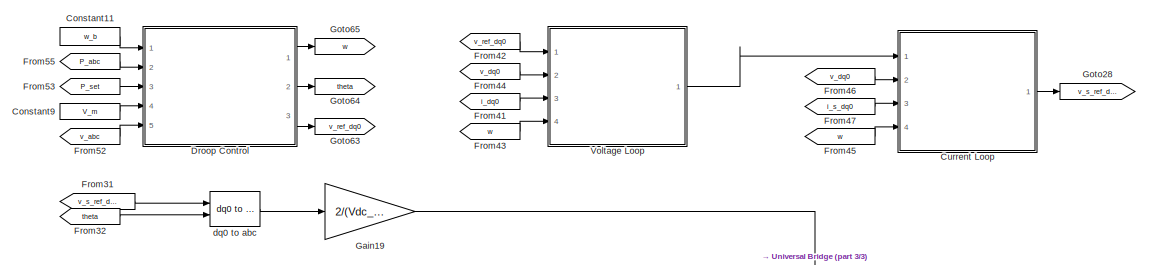
[diagram: GFC 2 - part 1/3, top center region]
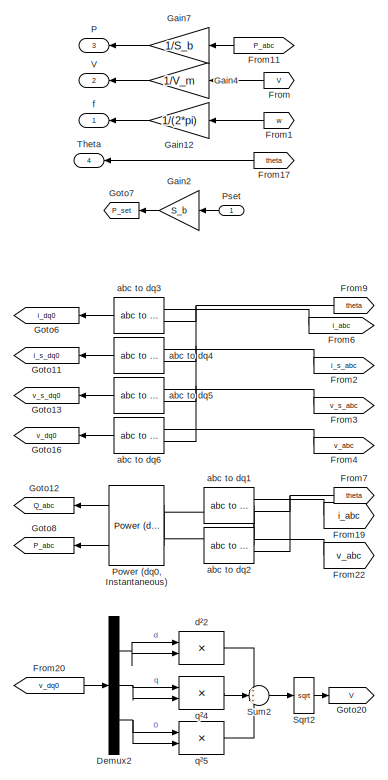
[diagram: GFC 2 - part 2/3, middle left region]
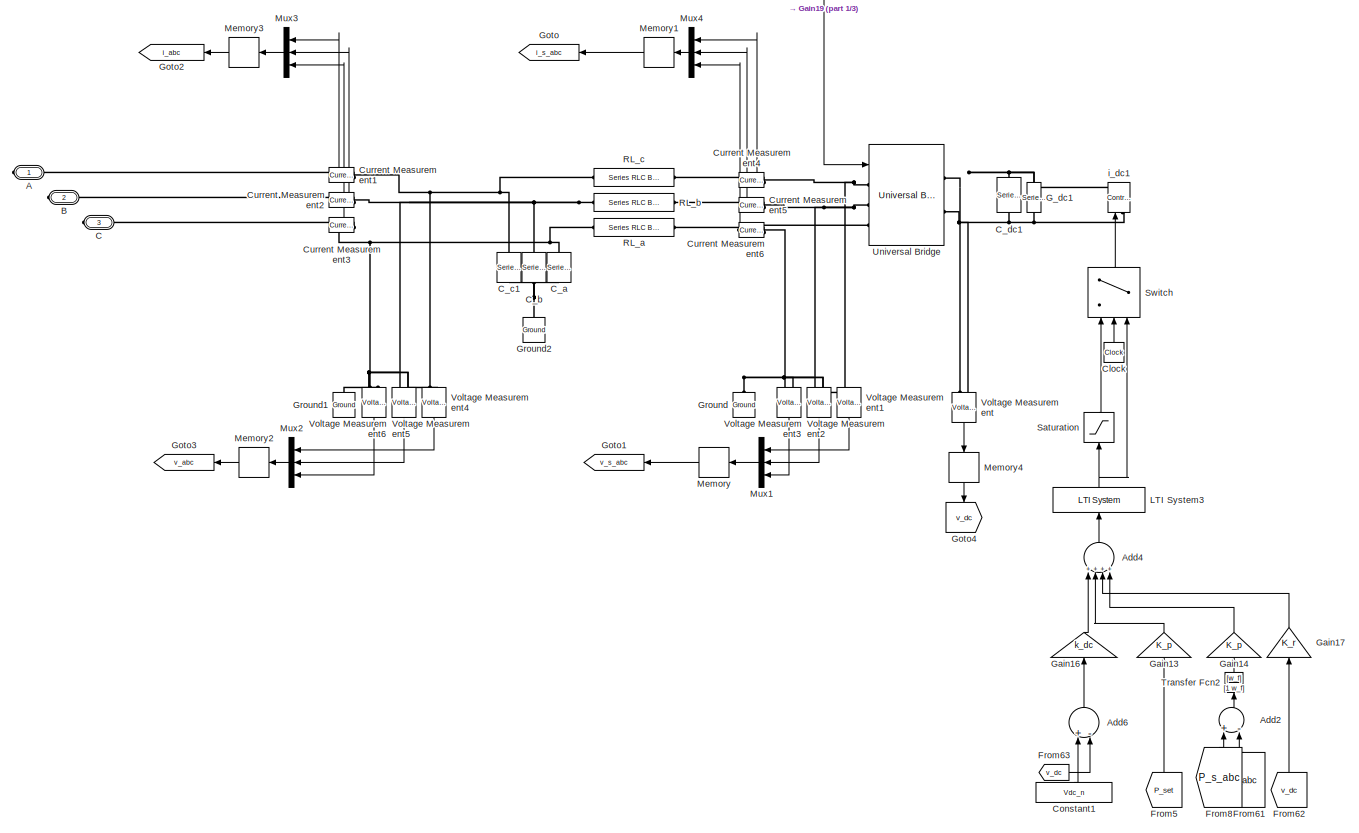
[diagram: GFC 2 - part 3/3, central region]
BLOCK [SubSystem] GFC 2
  Ports = [1, 4, 0, 0, 0, 0, 3]
  RequestExecContextInheritance = off
BLOCK [PMIOPort] GFC 2/A
  Side = Right
BLOCK [Sum] GFC 2/Add2
  InputSameDT = off
  Inputs = +-
  OutDataTypeStr = Inherit: Inherit via internal rule
  Ports = [2, 1]
  SaturateOnIntegerOverflow = off
BLOCK [Sum] GFC 2/Add4
  InputSameDT = off
  Inputs = ++++
  OutDataTypeStr = Inherit: Inherit via internal rule
  Ports = [4, 1]
  SaturateOnIntegerOverflow = off
BLOCK [Sum] GFC 2/Add6
  InputSameDT = off
  Inputs = +-
  OutDataTypeStr = Inherit: Inherit via internal rule
  Ports = [2, 1]
  SaturateOnIntegerOverflow = off
BLOCK [PMIOPort] GFC 2/B
  Port = 2
  Side = Right
BLOCK [PMIOPort] GFC 2/C
  Port = 3
  Side = Right
BLOCK [Reference] GFC 2/C_a  REF=powerlib/Elements/Series RLC Branch
  Ports = [0, 0, 0, 0, 0, 1, 1]
  SourceBlock = powerlib/Elements/Series RLC Branch
  SourceProductBaseCode = PS
  SourceProductName = Simscape Power Systems
  SourceType = Series RLC Branch
BLOCK [Reference] GFC 2/C_b  REF=powerlib/Elements/Series RLC Branch
  Ports = [0, 0, 0, 0, 0, 1, 1]
  SourceBlock = powerlib/Elements/Series RLC Branch
  SourceProductBaseCode = PS
  SourceProductName = Simscape Power Systems
  SourceType = Series RLC Branch
BLOCK [Reference] GFC 2/C_c1  REF=powerlib/Elements/Series RLC Branch
  Ports = [0, 0, 0, 0, 0, 1, 1]
  SourceBlock = powerlib/Elements/Series RLC Branch
  SourceProductBaseCode = PS
  SourceProductName = Simscape Power Systems
  SourceType = Series RLC Branch
BLOCK [Reference] GFC 2/C_dc1  REF=powerlib/Elements/Series RLC Branch
  Ports = [0, 0, 0, 0, 0, 1, 1]
  SourceBlock = powerlib/Elements/Series RLC Branch
  SourceProductBaseCode = PS
  SourceProductName = Simscape Power Systems
  SourceType = Series RLC Branch
BLOCK [Clock] GFC 2/Clock
BLOCK [Constant] GFC 2/Constant1
  Value = Vdc_n
BLOCK [Constant] GFC 2/Constant11
  Value = w_b
BLOCK [Constant] GFC 2/Constant9
  Value = V_m
BLOCK [SubSystem] GFC 2/Current Loop
  Ports = [4, 1]
  RequestExecContextInheritance = off
BLOCK [Demux] GFC 2/Current Loop/Demux
  DisplayOption = bar
  Outputs = 2
  Ports = [1, 2]
BLOCK [Demux] GFC 2/Current Loop/Demux1
  DisplayOption = bar
  Outputs = 2
  Ports = [1, 2]
BLOCK [Demux] GFC 2/Current Loop/Demux2
  DisplayOption = bar
  Outputs = 2
  Ports = [1, 2]
BLOCK [Reference] GFC 2/Current Loop/First-Order Filter2  REF=powerlib_meascontrol/Filters/First-Order
Filter
  Commented = on
  Ports = [1, 1]
  SourceBlock = powerlib_meascontrol/Filters/First-Order\nFilter
  SourceProductBaseCode = PS
  SourceProductName = Simscape Power Systems
  SourceType = First-Order Filter
BLOCK [Reference] GFC 2/Current Loop/First-Order Filter3  REF=powerlib_meascontrol/Filters/First-Order
Filter
  Commented = on
  Ports = [1, 1]
  SourceBlock = powerlib_meascontrol/Filters/First-Order\nFilter
  SourceProductBaseCode = PS
  SourceProductName = Simscape Power Systems
  SourceType = First-Order Filter
BLOCK [Gain] GFC 2/Current Loop/Gain Corrector
  Gain = Kp_i
  OutDataTypeStr = Inherit: Inherit via internal rule
  ParamDataTypeStr = Inherit: Inherit via internal rule
  SaturateOnIntegerOverflow = off
BLOCK [Gain] GFC 2/Current Loop/Gain Corrector1
  Gain = Kp_i
  OutDataTypeStr = Inherit: Inherit via internal rule
  ParamDataTypeStr = Inherit: Inherit via internal rule
  SaturateOnIntegerOverflow = off
BLOCK [Gain] GFC 2/Current Loop/Integration Time
  Gain = Ki_i / Kp_i
  OutDataTypeStr = Inherit: Inherit via internal rule
  ParamDataTypeStr = Inherit: Inherit via internal rule
  SaturateOnIntegerOverflow = off
BLOCK [Gain] GFC 2/Current Loop/Integration Time 1
  Gain = Ki_i / Kp_i
  OutDataTypeStr = Inherit: Inherit via internal rule
  ParamDataTypeStr = Inherit: Inherit via internal rule
  SaturateOnIntegerOverflow = off
BLOCK [Gain] GFC 2/Current Loop/Integration Time1
  Gain = 1/n
  OutDataTypeStr = Inherit: Inherit via internal rule
  ParamDataTypeStr = Inherit: Inherit via internal rule
  SaturateOnIntegerOverflow = off
BLOCK [Gain] GFC 2/Current Loop/Integration Time2
  Gain = 1/n
  OutDataTypeStr = Inherit: Inherit via internal rule
  ParamDataTypeStr = Inherit: Inherit via internal rule
  SaturateOnIntegerOverflow = off
BLOCK [Integrator] GFC 2/Current Loop/Integrator
  InitialCondition = 0.0001
  Ports = [1, 1]
BLOCK [Integrator] GFC 2/Current Loop/Integrator 1
  Ports = [1, 1]
BLOCK [Mux] GFC 2/Current Loop/Mux
  DisplayOption = bar
  Inputs = 3
  Ports = [3, 1]
BLOCK [Product] GFC 2/Current Loop/Product
  InputSameDT = off
  OutDataTypeStr = Inherit: Inherit via internal rule
  Ports = [2, 1]
  SaturateOnIntegerOverflow = off
BLOCK [Product] GFC 2/Current Loop/Product1
  InputSameDT = off
  OutDataTypeStr = Inherit: Inherit via internal rule
  Ports = [2, 1]
  SaturateOnIntegerOverflow = off
BLOCK [Selector] GFC 2/Current Loop/Selector1
  IndexOptions = Index vector (dialog)
  Indices = [1 2]
  InputPortWidth = 3
  OutputSizes = 1
  Ports = [1, 1]
BLOCK [Selector] GFC 2/Current Loop/Selector2
  IndexOptions = Index vector (dialog)
  Indices = [1 2]
  InputPortWidth = 3
  OutputSizes = 1
  Ports = [1, 1]
BLOCK [Selector] GFC 2/Current Loop/Selector3
  IndexOptions = Index vector (dialog)
  Indices = [1 2]
  InputPortWidth = 3
  OutputSizes = 1
  Ports = [1, 1]
BLOCK [Sum] GFC 2/Current Loop/Sum
  IconShape = round
  InputSameDT = off
  Inputs = |+-
  OutDataTypeStr = Inherit: Inherit via internal rule
  Ports = [2, 1]
  SaturateOnIntegerOverflow = off
BLOCK [Sum] GFC 2/Current Loop/Sum1
  IconShape = round
  InputSameDT = off
  Inputs = |++
  OutDataTypeStr = Inherit: Inherit via internal rule
  Ports = [2, 1]
  SaturateOnIntegerOverflow = off
BLOCK [Sum] GFC 2/Current Loop/Sum2
  IconShape = round
  InputSameDT = off
  Inputs = |+-
  OutDataTypeStr = Inherit: Inherit via internal rule
  Ports = [2, 1]
  SaturateOnIntegerOverflow = off
BLOCK [Sum] GFC 2/Current Loop/Sum3
  IconShape = round
  InputSameDT = off
  Inputs = |++
  OutDataTypeStr = Inherit: Inherit via internal rule
  Ports = [2, 1]
  SaturateOnIntegerOverflow = off
BLOCK [Sum] GFC 2/Current Loop/Sum4
  IconShape = round
  InputSameDT = off
  Inputs = |++
  OutDataTypeStr = Inherit: Inherit via internal rule
  Ports = [2, 1]
  SaturateOnIntegerOverflow = off
BLOCK [Sum] GFC 2/Current Loop/Sum5
  IconShape = round
  InputSameDT = off
  Inputs = ++|
  OutDataTypeStr = Inherit: Inherit via internal rule
  Ports = [2, 1]
  SaturateOnIntegerOverflow = off
BLOCK [Sum] GFC 2/Current Loop/Sum6
  IconShape = round
  InputSameDT = off
  Inputs = -+|
  OutDataTypeStr = Inherit: Inherit via internal rule
  Ports = [2, 1]
  SaturateOnIntegerOverflow = off
BLOCK [Sum] GFC 2/Current Loop/Sum7
  IconShape = round
  InputSameDT = off
  Inputs = ++|
  OutDataTypeStr = Inherit: Inherit via internal rule
  Ports = [2, 1]
  SaturateOnIntegerOverflow = off
BLOCK [Constant] GFC 2/Current Loop/Vm_0*
  Value = 0
BLOCK [Gain] GFC 2/Current Loop/Voltage Compensator 1
  Gain = Kff_v
  OutDataTypeStr = Inherit: Inherit via internal rule
  ParamDataTypeStr = Inherit: Inherit via internal rule
  SaturateOnIntegerOverflow = off
BLOCK [Gain] GFC 2/Current Loop/Voltage compensator
  Gain = Kff_v
  OutDataTypeStr = Inherit: Inherit via internal rule
  ParamDataTypeStr = Inherit: Inherit via internal rule
  SaturateOnIntegerOverflow = off
BLOCK [Inport] GFC 2/Current Loop/i_s_dq0
  IconDisplay = Port number
  Port = 3
BLOCK [Inport] GFC 2/Current Loop/i_s_ref_dq0
  IconDisplay = Port number
BLOCK [Inport] GFC 2/Current Loop/v_dq0
  IconDisplay = Port number
  Port = 2
BLOCK [Outport] GFC 2/Current Loop/v_s_ref_dq0
  IconDisplay = Port number
BLOCK [Inport] GFC 2/Current Loop/w
  IconDisplay = Port number
  Port = 4
BLOCK [Gain] GFC 2/Current Loop/w*Lf_pu
  Gain = L_f
  OutDataTypeStr = Inherit: Inherit via internal rule
  ParamDataTypeStr = Inherit: Inherit via internal rule
  SaturateOnIntegerOverflow = off
BLOCK [Reference] GFC 2/Current Measurement1  REF=powerlib/Measurements/Current Measurement
  Ports = [0, 1, 0, 0, 0, 1, 1]
  SourceBlock = powerlib/Measurements/Current Measurement
  SourceProductBaseCode = PS
  SourceProductName = Simscape Power Systems
  SourceType = Current Measurement
  UserDataPersistent = on
BLOCK [Reference] GFC 2/Current Measurement2  REF=powerlib/Measurements/Current Measurement
  Ports = [0, 1, 0, 0, 0, 1, 1]
  SourceBlock = powerlib/Measurements/Current Measurement
  SourceProductBaseCode = PS
  SourceProductName = Simscape Power Systems
  SourceType = Current Measurement
  UserDataPersistent = on
BLOCK [Reference] GFC 2/Current Measurement3  REF=powerlib/Measurements/Current Measurement
  Ports = [0, 1, 0, 0, 0, 1, 1]
  SourceBlock = powerlib/Measurements/Current Measurement
  SourceProductBaseCode = PS
  SourceProductName = Simscape Power Systems
  SourceType = Current Measurement
  UserDataPersistent = on
BLOCK [Reference] GFC 2/Current Measurement4  REF=powerlib/Measurements/Current Measurement
  Ports = [0, 1, 0, 0, 0, 1, 1]
  SourceBlock = powerlib/Measurements/Current Measurement
  SourceProductBaseCode = PS
  SourceProductName = Simscape Power Systems
  SourceType = Current Measurement
  UserDataPersistent = on
BLOCK [Reference] GFC 2/Current Measurement5  REF=powerlib/Measurements/Current Measurement
  Ports = [0, 1, 0, 0, 0, 1, 1]
  SourceBlock = powerlib/Measurements/Current Measurement
  SourceProductBaseCode = PS
  SourceProductName = Simscape Power Systems
  SourceType = Current Measurement
  UserDataPersistent = on
BLOCK [Reference] GFC 2/Current Measurement6  REF=powerlib/Measurements/Current Measurement
  Ports = [0, 1, 0, 0, 0, 1, 1]
  SourceBlock = powerlib/Measurements/Current Measurement
  SourceProductBaseCode = PS
  SourceProductName = Simscape Power Systems
  SourceType = Current Measurement
  UserDataPersistent = on
BLOCK [Demux] GFC 2/Demux2
  DisplayOption = bar
  Outputs = 3
  Ports = [1, 3]
BLOCK [SubSystem] GFC 2/Droop Control
  Ports = [5, 3]
  RequestExecContextInheritance = off
BLOCK [Demux] GFC 2/Droop Control/Demux
  DisplayOption = bar
  Outputs = 3
  Ports = [1, 3]
BLOCK [Gain] GFC 2/Droop Control/Gain20
  Gain = m_p
  OutDataTypeStr = Inherit: Inherit via internal rule
  ParamDataTypeStr = Inherit: Inherit via internal rule
  SaturateOnIntegerOverflow = off
BLOCK [Integrator] GFC 2/Droop Control/Integrator3
  Ports = [1, 1]
BLOCK [Mux] GFC 2/Droop Control/Mux4
  DisplayOption = bar
  Inputs = 3
  Ports = [3, 1]
BLOCK [Reference] GFC 2/Droop Control/PID Controller  REF=simulink/Continuous/PID Controller
  Ports = [1, 1]
  SourceBlock = simulink/Continuous/PID Controller
  SourceProductBaseCode = SL
  SourceProductName = Simulink
  SourceType = PID 1dof
BLOCK [Sum] GFC 2/Droop Control/Sum1
  IconShape = round
  InputSameDT = off
  Inputs = -+|
  OutDataTypeStr = Inherit: Inherit via internal rule
  Ports = [2, 1]
  SaturateOnIntegerOverflow = off
BLOCK [Sum] GFC 2/Droop Control/Sum7
  IconShape = round
  InputSameDT = off
  Inputs = |+-
  OutDataTypeStr = Inherit: Inherit via internal rule
  Ports = [2, 1]
  SaturateOnIntegerOverflow = off
BLOCK [Sum] GFC 2/Droop Control/Sum8
  IconShape = round
  InputSameDT = off
  Inputs = +-|
  OutDataTypeStr = Inherit: Inherit via internal rule
  Ports = [2, 1]
  SaturateOnIntegerOverflow = off
BLOCK [TransferFcn] GFC 2/Droop Control/Transfer Fcn4
  Denominator = [1 w_f]
  Numerator = [w_f]
BLOCK [Inport] GFC 2/Droop Control/V_abc
  IconDisplay = Port number
  Port = 5
BLOCK [Reference] GFC 2/Droop Control/abc to dq1  REF=powerlib_meascontrol/Transformations/abc to dq0
  Ports = [2, 1]
  SourceBlock = powerlib_meascontrol/Transformations/abc to dq0
  SourceProductBaseCode = PS
  SourceProductName = Simscape Power Systems
  SourceType = abc to dq0 Transformation
BLOCK [Inport] GFC 2/Droop Control/p_m
  IconDisplay = Port number
  Port = 2
BLOCK [Inport] GFC 2/Droop Control/p_set
  IconDisplay = Port number
  Port = 3
BLOCK [Constant] GFC 2/Droop Control/q0
  Value = 0
BLOCK [Outport] GFC 2/Droop Control/theta_ref
  IconDisplay = Port number
  Port = 2
BLOCK [Inport] GFC 2/Droop Control/v_m
  IconDisplay = Port number
  Port = 4
BLOCK [Outport] GFC 2/Droop Control/v_ref_dq0
  IconDisplay = Port number
  Port = 3
BLOCK [Inport] GFC 2/Droop Control/w_b
  IconDisplay = Port number
BLOCK [Outport] GFC 2/Droop Control/w_ref
  IconDisplay = Port number
BLOCK [From] GFC 2/From
  GotoTag = V
BLOCK [From] GFC 2/From1
  GotoTag = w
BLOCK [From] GFC 2/From11
  GotoTag = P_abc
BLOCK [From] GFC 2/From17
  GotoTag = theta
BLOCK [From] GFC 2/From19
  GotoTag = i_abc
BLOCK [From] GFC 2/From2
  GotoTag = i_s_abc
BLOCK [From] GFC 2/From20
  GotoTag = v_dq0
BLOCK [From] GFC 2/From22
  GotoTag = v_abc
BLOCK [From] GFC 2/From3
  GotoTag = v_s_abc
BLOCK [From] GFC 2/From31
  GotoTag = v_s_ref_dq0
BLOCK [From] GFC 2/From32
  GotoTag = theta
BLOCK [From] GFC 2/From4
  GotoTag = v_abc
BLOCK [From] GFC 2/From41
  GotoTag = i_dq0
BLOCK [From] GFC 2/From42
  GotoTag = v_ref_dq0
BLOCK [From] GFC 2/From43
  GotoTag = w
BLOCK [From] GFC 2/From44
  GotoTag = v_dq0
BLOCK [From] GFC 2/From45
  GotoTag = w
BLOCK [From] GFC 2/From46
  GotoTag = v_dq0
BLOCK [From] GFC 2/From47
  GotoTag = i_s_dq0
BLOCK [From] GFC 2/From5
  GotoTag = P_set
BLOCK [From] GFC 2/From52
  GotoTag = v_abc
BLOCK [From] GFC 2/From53
  GotoTag = P_set
BLOCK [From] GFC 2/From55
  GotoTag = P_abc
BLOCK [From] GFC 2/From6
  GotoTag = i_abc
BLOCK [From] GFC 2/From61
  GotoTag = P_abc
BLOCK [From] GFC 2/From62
  GotoTag = v_dc
BLOCK [From] GFC 2/From63
  GotoTag = v_dc
BLOCK [From] GFC 2/From7
  GotoTag = theta
BLOCK [From] GFC 2/From8
  GotoTag = P_s_abc
BLOCK [From] GFC 2/From9
  GotoTag = theta
BLOCK [Reference] GFC 2/G_dc1  REF=powerlib/Elements/Series RLC Branch
  Ports = [0, 0, 0, 0, 0, 1, 1]
  SourceBlock = powerlib/Elements/Series RLC Branch
  SourceProductBaseCode = PS
  SourceProductName = Simscape Power Systems
  SourceType = Series RLC Branch
BLOCK [Gain] GFC 2/Gain12
  Gain = 1/(2*pi)
  OutDataTypeStr = Inherit: Inherit via internal rule
  ParamDataTypeStr = Inherit: Inherit via internal rule
  SaturateOnIntegerOverflow = off
BLOCK [Gain] GFC 2/Gain13
  Gain = K_p
  OutDataTypeStr = Inherit: Inherit via internal rule
  ParamDataTypeStr = Inherit: Inherit via internal rule
  SaturateOnIntegerOverflow = off
BLOCK [Gain] GFC 2/Gain14
  Gain = K_p
  OutDataTypeStr = Inherit: Inherit via internal rule
  ParamDataTypeStr = Inherit: Inherit via internal rule
  SaturateOnIntegerOverflow = off
BLOCK [Gain] GFC 2/Gain16
  Gain = k_dc
  OutDataTypeStr = Inherit: Inherit via internal rule
  ParamDataTypeStr = Inherit: Inherit via internal rule
  SaturateOnIntegerOverflow = off
BLOCK [Gain] GFC 2/Gain17
  Gain = K_r
  OutDataTypeStr = Inherit: Inherit via internal rule
  ParamDataTypeStr = Inherit: Inherit via internal rule
  SaturateOnIntegerOverflow = off
BLOCK [Gain] GFC 2/Gain19
  Gain = 2/(Vdc_n)
  OutDataTypeStr = Inherit: Inherit via internal rule
  ParamDataTypeStr = Inherit: Inherit via internal rule
  SaturateOnIntegerOverflow = off
BLOCK [Gain] GFC 2/Gain2
  Gain = S_b
  OutDataTypeStr = Inherit: Inherit via internal rule
  ParamDataTypeStr = Inherit: Inherit via internal rule
  SaturateOnIntegerOverflow = off
BLOCK [Gain] GFC 2/Gain4
  Gain = 1/V_m
  OutDataTypeStr = Inherit: Inherit via internal rule
  ParamDataTypeStr = Inherit: Inherit via internal rule
  SaturateOnIntegerOverflow = off
BLOCK [Gain] GFC 2/Gain7
  Gain = 1/S_b
  OutDataTypeStr = Inherit: Inherit via internal rule
  ParamDataTypeStr = Inherit: Inherit via internal rule
  SaturateOnIntegerOverflow = off
BLOCK [Goto] GFC 2/Goto
  GotoTag = i_s_abc
BLOCK [Goto] GFC 2/Goto1
  GotoTag = v_s_abc
BLOCK [Goto] GFC 2/Goto11
  GotoTag = i_s_dq0
BLOCK [Goto] GFC 2/Goto12
  GotoTag = Q_abc
BLOCK [Goto] GFC 2/Goto13
  GotoTag = v_s_dq0
BLOCK [Goto] GFC 2/Goto16
  GotoTag = v_dq0
BLOCK [Goto] GFC 2/Goto2
  GotoTag = i_abc
BLOCK [Goto] GFC 2/Goto20
  GotoTag = V
BLOCK [Goto] GFC 2/Goto28
  GotoTag = v_s_ref_dq0
BLOCK [Goto] GFC 2/Goto3
  GotoTag = v_abc
BLOCK [Goto] GFC 2/Goto4
  GotoTag = v_dc
BLOCK [Goto] GFC 2/Goto6
  GotoTag = i_dq0
BLOCK [Goto] GFC 2/Goto63
  GotoTag = v_ref_dq0
BLOCK [Goto] GFC 2/Goto64
  GotoTag = theta
BLOCK [Goto] GFC 2/Goto65
  GotoTag = w
BLOCK [Goto] GFC 2/Goto7
  GotoTag = P_set
BLOCK [Goto] GFC 2/Goto8
  GotoTag = P_abc
BLOCK [Reference] GFC 2/Ground  REF=powerlib/Elements/Ground
  Ports = [0, 0, 0, 0, 0, 1]
  SourceBlock = powerlib/Elements/Ground
  SourceProductBaseCode = PS
  SourceProductName = Simscape Power Systems
  SourceType = Ground
BLOCK [Reference] GFC 2/Ground1  REF=powerlib/Elements/Ground
  Ports = [0, 0, 0, 0, 0, 1]
  SourceBlock = powerlib/Elements/Ground
  SourceProductBaseCode = PS
  SourceProductName = Simscape Power Systems
  SourceType = Ground
BLOCK [Reference] GFC 2/Ground2  REF=powerlib/Elements/Ground
  Ports = [0, 0, 0, 0, 0, 1]
  SourceBlock = powerlib/Elements/Ground
  SourceProductBaseCode = PS
  SourceProductName = Simscape Power Systems
  SourceType = Ground
BLOCK [Reference] GFC 2/LTI System3  REF=cstblocks/LTI System
  Ports = [1, 1]
  SourceBlock = cstblocks/LTI System
  SourceProductBaseCode = CT
  SourceProductName = Control System Toolbox
  SourceType = LTI Block
BLOCK [Memory] GFC 2/Memory
BLOCK [Memory] GFC 2/Memory1
BLOCK [Memory] GFC 2/Memory2
BLOCK [Memory] GFC 2/Memory3
BLOCK [Memory] GFC 2/Memory4
BLOCK [Mux] GFC 2/Mux1
  DisplayOption = bar
  Inputs = 3
  Ports = [3, 1]
BLOCK [Mux] GFC 2/Mux2
  DisplayOption = bar
  Inputs = 3
  Ports = [3, 1]
BLOCK [Mux] GFC 2/Mux3
  DisplayOption = bar
  Inputs = 3
  Ports = [3, 1]
BLOCK [Mux] GFC 2/Mux4
  DisplayOption = bar
  Inputs = 3
  Ports = [3, 1]
BLOCK [Outport] GFC 2/P
  IconDisplay = Port number
  Port = 3
BLOCK [Reference] GFC 2/Power (dq0, Instantaneous)  REF=powerlib_meascontrol/Measurements/Power
(dq0, Instantaneous)
  Ports = [2, 2]
  SourceBlock = powerlib_meascontrol/Measurements/Power\n(dq0, Instantaneous)
  SourceProductBaseCode = PS
  SourceProductName = Simscape Power Systems
  SourceType = Power (dq0, Instantaneous)
BLOCK [Inport] GFC 2/Pset
  IconDisplay = Port number
BLOCK [Reference] GFC 2/RL_a  REF=powerlib/Elements/Series RLC Branch
  Ports = [0, 0, 0, 0, 0, 1, 1]
  SourceBlock = powerlib/Elements/Series RLC Branch
  SourceProductBaseCode = PS
  SourceProductName = Simscape Power Systems
  SourceType = Series RLC Branch
BLOCK [Reference] GFC 2/RL_b  REF=powerlib/Elements/Series RLC Branch
  Ports = [0, 0, 0, 0, 0, 1, 1]
  SourceBlock = powerlib/Elements/Series RLC Branch
  SourceProductBaseCode = PS
  SourceProductName = Simscape Power Systems
  SourceType = Series RLC Branch
BLOCK [Reference] GFC 2/RL_c  REF=powerlib/Elements/Series RLC Branch
  Ports = [0, 0, 0, 0, 0, 1, 1]
  SourceBlock = powerlib/Elements/Series RLC Branch
  SourceProductBaseCode = PS
  SourceProductName = Simscape Power Systems
  SourceType = Series RLC Branch
BLOCK [Saturate] GFC 2/Saturation
  InputPortMap = u0
  LowerLimit = i_ll
  Ports = [1, 1]
  UpperLimit = i_ul
BLOCK [Sqrt] GFC 2/Sqrt2
BLOCK [Sum] GFC 2/Sum2
  IconShape = round
  Inputs = +++
  Ports = [3, 1]
BLOCK [Switch] GFC 2/Switch
  Criteria = u2 > Threshold
  InputSameDT = off
  SaturateOnIntegerOverflow = off
  Threshold = T_en
BLOCK [Outport] GFC 2/Theta
  IconDisplay = Port number
  Port = 4
BLOCK [TransferFcn] GFC 2/Transfer Fcn2
  Denominator = [1 w_f]
  Numerator = [w_f]
BLOCK [Reference] GFC 2/Universal Bridge  REF=powerlib/Power
Electronics/Universal Bridge
  Ports = [1, 0, 0, 0, 0, 3, 2]
  SourceBlock = powerlib/Power\nElectronics/Universal Bridge
  SourceProductBaseCode = PS
  SourceProductName = Simscape Power Systems
  SourceType = Universal Bridge
BLOCK [Outport] GFC 2/V
  IconDisplay = Port number
  Port = 2
BLOCK [SubSystem] GFC 2/Voltage Loop
  Ports = [4, 1]
  RequestExecContextInheritance = off
BLOCK [Gain] GFC 2/Voltage Loop/Current Compensator
  Gain = Kff_i
  OutDataTypeStr = Inherit: Inherit via internal rule
  ParamDataTypeStr = Inherit: Inherit via internal rule
  SaturateOnIntegerOverflow = off
BLOCK [Gain] GFC 2/Voltage Loop/Current Compensator1
  Gain = Kff_i
  OutDataTypeStr = Inherit: Inherit via internal rule
  ParamDataTypeStr = Inherit: Inherit via internal rule
  SaturateOnIntegerOverflow = off
BLOCK [Gain] GFC 2/Voltage Loop/Damping (d)
  Gain = Kp_v
  OutDataTypeStr = Inherit: Inherit via internal rule
  ParamDataTypeStr = Inherit: Inherit via internal rule
  SaturateOnIntegerOverflow = off
BLOCK [Gain] GFC 2/Voltage Loop/Damping (q)
  Gain = Kp_v
  OutDataTypeStr = Inherit: Inherit via internal rule
  ParamDataTypeStr = Inherit: Inherit via internal rule
  SaturateOnIntegerOverflow = off
BLOCK [Demux] GFC 2/Voltage Loop/Demux
  DisplayOption = bar
  Outputs = 2
  Ports = [1, 2]
BLOCK [Demux] GFC 2/Voltage Loop/Demux1
  DisplayOption = bar
  Outputs = 2
  Ports = [1, 2]
BLOCK [Demux] GFC 2/Voltage Loop/Demux2
  DisplayOption = bar
  Outputs = 2
  Ports = [1, 2]
BLOCK [Product] GFC 2/Voltage Loop/Eg_d * (wCf)
  InputSameDT = off
  OutDataTypeStr = Inherit: Inherit via internal rule
  Ports = [2, 1]
  SaturateOnIntegerOverflow = off
BLOCK [Product] GFC 2/Voltage Loop/Eg_q * (wCf) 
  InputSameDT = off
  OutDataTypeStr = Inherit: Inherit via internal rule
  Ports = [2, 1]
  SaturateOnIntegerOverflow = off
BLOCK [Gain] GFC 2/Voltage Loop/Filter capacitance
  Gain = C_f
  OutDataTypeStr = Inherit: Inherit via internal rule
  ParamDataTypeStr = Inherit: Inherit via internal rule
  SaturateOnIntegerOverflow = off
BLOCK [Gain] GFC 2/Voltage Loop/Integration Time
  Gain = Ki_v / Kp_v
  OutDataTypeStr = Inherit: Inherit via internal rule
  ParamDataTypeStr = Inherit: Inherit via internal rule
  SaturateOnIntegerOverflow = off
BLOCK [Gain] GFC 2/Voltage Loop/Integration Time1
  Gain = Ki_v / Kp_v
  OutDataTypeStr = Inherit: Inherit via internal rule
  ParamDataTypeStr = Inherit: Inherit via internal rule
  SaturateOnIntegerOverflow = off
BLOCK [Gain] GFC 2/Voltage Loop/Integration Time2
  Gain = n
  OutDataTypeStr = Inherit: Inherit via internal rule
  ParamDataTypeStr = Inherit: Inherit via internal rule
  SaturateOnIntegerOverflow = off
BLOCK [Gain] GFC 2/Voltage Loop/Integration Time3
  Gain = n
  OutDataTypeStr = Inherit: Inherit via internal rule
  ParamDataTypeStr = Inherit: Inherit via internal rule
  SaturateOnIntegerOverflow = off
BLOCK [Integrator] GFC 2/Voltage Loop/Integrator
  Ports = [1, 1]
BLOCK [Integrator] GFC 2/Voltage Loop/Integrator1
  Ports = [1, 1]
BLOCK [Constant] GFC 2/Voltage Loop/Is_0*
  Value = 0
BLOCK [Mux] GFC 2/Voltage Loop/Mux
  DisplayOption = bar
  Inputs = 3
  Ports = [3, 1]
BLOCK [Selector] GFC 2/Voltage Loop/Selector
  IndexOptions = Index vector (dialog)
  Indices = [1 2]
  InputPortWidth = 3
  OutputSizes = 1
  Ports = [1, 1]
BLOCK [Selector] GFC 2/Voltage Loop/Selector1
  IndexOptions = Index vector (dialog)
  Indices = [1 2]
  InputPortWidth = 3
  OutputSizes = 1
  Ports = [1, 1]
BLOCK [Selector] GFC 2/Voltage Loop/Selector2
  IndexOptions = Index vector (dialog)
  Indices = [1 2]
  InputPortWidth = 3
  OutputSizes = 1
  Ports = [1, 1]
BLOCK [Sum] GFC 2/Voltage Loop/Sum
  IconShape = round
  InputSameDT = off
  Inputs = |+-
  OutDataTypeStr = Inherit: Inherit via internal rule
  Ports = [2, 1]
  SaturateOnIntegerOverflow = off
BLOCK [Sum] GFC 2/Voltage Loop/Sum1
  IconShape = round
  InputSameDT = off
  Inputs = |++
  OutDataTypeStr = Inherit: Inherit via internal rule
  Ports = [2, 1]
  SaturateOnIntegerOverflow = off
BLOCK [Sum] GFC 2/Voltage Loop/Sum2
  IconShape = round
  InputSameDT = off
  Inputs = |+-
  OutDataTypeStr = Inherit: Inherit via internal rule
  Ports = [2, 1]
  SaturateOnIntegerOverflow = off
BLOCK [Sum] GFC 2/Voltage Loop/Sum3
  IconShape = round
  InputSameDT = off
  Inputs = |++
  OutDataTypeStr = Inherit: Inherit via internal rule
  Ports = [2, 1]
  SaturateOnIntegerOverflow = off
BLOCK [Sum] GFC 2/Voltage Loop/Sum4
  IconShape = round
  InputSameDT = off
  Inputs = |++
  OutDataTypeStr = Inherit: Inherit via internal rule
  Ports = [2, 1]
  SaturateOnIntegerOverflow = off
BLOCK [Sum] GFC 2/Voltage Loop/Sum5
  IconShape = round
  InputSameDT = off
  Inputs = ++|
  OutDataTypeStr = Inherit: Inherit via internal rule
  Ports = [2, 1]
  SaturateOnIntegerOverflow = off
BLOCK [Sum] GFC 2/Voltage Loop/Sum6
  IconShape = round
  InputSameDT = off
  Inputs = -+|
  OutDataTypeStr = Inherit: Inherit via internal rule
  Ports = [2, 1]
  SaturateOnIntegerOverflow = off
BLOCK [Sum] GFC 2/Voltage Loop/Sum7
  IconShape = round
  InputSameDT = off
  Inputs = ++|
  OutDataTypeStr = Inherit: Inherit via internal rule
  Ports = [2, 1]
  SaturateOnIntegerOverflow = off
BLOCK [Inport] GFC 2/Voltage Loop/i_dq0
  IconDisplay = Port number
  Port = 3
BLOCK [Outport] GFC 2/Voltage Loop/i_s_ref_dq0
  IconDisplay = Port number
BLOCK [Inport] GFC 2/Voltage Loop/v_dq0
  IconDisplay = Port number
  Port = 2
BLOCK [Inport] GFC 2/Voltage Loop/v_ref_dq0
  IconDisplay = Port number
BLOCK [Inport] GFC 2/Voltage Loop/w
  IconDisplay = Port number
  Port = 4
BLOCK [Reference] GFC 2/Voltage Measurement  REF=powerlib/Measurements/Voltage Measurement
  Ports = [0, 1, 0, 0, 0, 2]
  SourceBlock = powerlib/Measurements/Voltage Measurement
  SourceProductBaseCode = PS
  SourceProductName = Simscape Power Systems
  SourceType = Voltage Measurement
  UserDataPersistent = on
BLOCK [Reference] GFC 2/Voltage Measurement1  REF=powerlib/Measurements/Voltage Measurement
  Ports = [0, 1, 0, 0, 0, 2]
  SourceBlock = powerlib/Measurements/Voltage Measurement
  SourceProductBaseCode = PS
  SourceProductName = Simscape Power Systems
  SourceType = Voltage Measurement
  UserDataPersistent = on
BLOCK [Reference] GFC 2/Voltage Measurement2  REF=powerlib/Measurements/Voltage Measurement
  Ports = [0, 1, 0, 0, 0, 2]
  SourceBlock = powerlib/Measurements/Voltage Measurement
  SourceProductBaseCode = PS
  SourceProductName = Simscape Power Systems
  SourceType = Voltage Measurement
  UserDataPersistent = on
BLOCK [Reference] GFC 2/Voltage Measurement3  REF=powerlib/Measurements/Voltage Measurement
  Ports = [0, 1, 0, 0, 0, 2]
  SourceBlock = powerlib/Measurements/Voltage Measurement
  SourceProductBaseCode = PS
  SourceProductName = Simscape Power Systems
  SourceType = Voltage Measurement
  UserDataPersistent = on
BLOCK [Reference] GFC 2/Voltage Measurement4  REF=powerlib/Measurements/Voltage Measurement
  Ports = [0, 1, 0, 0, 0, 2]
  SourceBlock = powerlib/Measurements/Voltage Measurement
  SourceProductBaseCode = PS
  SourceProductName = Simscape Power Systems
  SourceType = Voltage Measurement
  UserDataPersistent = on
BLOCK [Reference] GFC 2/Voltage Measurement5  REF=powerlib/Measurements/Voltage Measurement
  Ports = [0, 1, 0, 0, 0, 2]
  SourceBlock = powerlib/Measurements/Voltage Measurement
  SourceProductBaseCode = PS
  SourceProductName = Simscape Power Systems
  SourceType = Voltage Measurement
  UserDataPersistent = on
BLOCK [Reference] GFC 2/Voltage Measurement6  REF=powerlib/Measurements/Voltage Measurement
  Ports = [0, 1, 0, 0, 0, 2]
  SourceBlock = powerlib/Measurements/Voltage Measurement
  SourceProductBaseCode = PS
  SourceProductName = Simscape Power Systems
  SourceType = Voltage Measurement
  UserDataPersistent = on
BLOCK [Reference] GFC 2/abc to dq1  REF=powerlib_meascontrol/Transformations/abc to dq0
  Ports = [2, 1]
  SourceBlock = powerlib_meascontrol/Transformations/abc to dq0
  SourceProductBaseCode = PS
  SourceProductName = Simscape Power Systems
  SourceType = abc to dq0 Transformation
BLOCK [Reference] GFC 2/abc to dq2  REF=powerlib_meascontrol/Transformations/abc to dq0
  Ports = [2, 1]
  SourceBlock = powerlib_meascontrol/Transformations/abc to dq0
  SourceProductBaseCode = PS
  SourceProductName = Simscape Power Systems
  SourceType = abc to dq0 Transformation
BLOCK [Reference] GFC 2/abc to dq3  REF=powerlib_meascontrol/Transformations/abc to dq0
  Ports = [2, 1]
  SourceBlock = powerlib_meascontrol/Transformations/abc to dq0
  SourceProductBaseCode = PS
  SourceProductName = Simscape Power Systems
  SourceType = abc to dq0 Transformation
BLOCK [Reference] GFC 2/abc to dq4  REF=powerlib_meascontrol/Transformations/abc to dq0
  Ports = [2, 1]
  SourceBlock = powerlib_meascontrol/Transformations/abc to dq0
  SourceProductBaseCode = PS
  SourceProductName = Simscape Power Systems
  SourceType = abc to dq0 Transformation
BLOCK [Reference] GFC 2/abc to dq5  REF=powerlib_meascontrol/Transformations/abc to dq0
  Ports = [2, 1]
  SourceBlock = powerlib_meascontrol/Transformations/abc to dq0
  SourceProductBaseCode = PS
  SourceProductName = Simscape Power Systems
  SourceType = abc to dq0 Transformation
BLOCK [Reference] GFC 2/abc to dq6  REF=powerlib_meascontrol/Transformations/abc to dq0
  Ports = [2, 1]
  SourceBlock = powerlib_meascontrol/Transformations/abc to dq0
  SourceProductBaseCode = PS
  SourceProductName = Simscape Power Systems
  SourceType = abc to dq0 Transformation
BLOCK [Reference] GFC 2/dq0 to abc  REF=powerlib_meascontrol/Transformations/dq0 to abc
  Ports = [2, 1]
  SourceBlock = powerlib_meascontrol/Transformations/dq0 to abc
  SourceProductBaseCode = PS
  SourceProductName = Simscape Power Systems
  SourceType = dq0 to abc Transformation
BLOCK [Product] GFC 2/d²2
  Ports = [2, 1]
BLOCK [Outport] GFC 2/f
  IconDisplay = Port number
BLOCK [Reference] GFC 2/i_dc1  REF=powerlib/Electrical
Sources/Controlled Current Source
  Ports = [1, 0, 0, 0, 0, 1, 1]
  SourceBlock = powerlib/Electrical\nSources/Controlled Current Source
  SourceProductBaseCode = PS
  SourceProductName = Simscape Power Systems
  SourceType = Controlled Current Source
BLOCK [Product] GFC 2/q²4
  Ports = [2, 1]
BLOCK [Product] GFC 2/q²5
  Ports = [2, 1]
BLOCK [Goto] Goto19
  GotoTag = V2
BLOCK [Goto] Goto2
  GotoTag = V3
BLOCK [Goto] Goto20
  GotoTag = Theta2
BLOCK [Goto] Goto3
  GotoTag = Theta3
BLOCK [Goto] Goto4
  GotoTag = f3
BLOCK [Goto] Goto49
  GotoTag = V1
BLOCK [Goto] Goto5
  GotoTag = P3
BLOCK [Goto] Goto51
  GotoTag = Theta1
BLOCK [Goto] Goto53
  GotoTag = f1
BLOCK [Goto] Goto54
  GotoTag = P1
BLOCK [Goto] Goto58
  GotoTag = f2
BLOCK [Goto] Goto59
  GotoTag = P2
BLOCK [Reference] Ground1  REF=powerlib/Elements/Ground
  Ports = [0, 0, 0, 0, 0, 1]
  SourceBlock = powerlib/Elements/Ground
  SourceProductBaseCode = PS
  SourceProductName = Simscape Power Systems
  SourceType = Ground
BLOCK [Reference] Ground2  REF=powerlib/Elements/Ground
  Ports = [0, 0, 0, 0, 0, 1]
  SourceBlock = powerlib/Elements/Ground
  SourceProductBaseCode = PS
  SourceProductName = Simscape Power Systems
  SourceType = Ground
BLOCK [Reference] Ground3  REF=powerlib/Elements/Ground
  Ports = [0, 0, 0, 0, 0, 1]
  SourceBlock = powerlib/Elements/Ground
  SourceProductBaseCode = PS
  SourceProductName = Simscape Power Systems
  SourceType = Ground
BLOCK [Reference] LV//MV Trafo 1  REF=powerlib/Elements/Three-Phase
Transformer
(Two Windings)
  AttributesFormatString = \n
  Ports = [0, 0, 0, 0, 0, 3, 3]
  SourceBlock = powerlib/Elements/Three-Phase\nTransformer\n(Two Windings)
  SourceProductBaseCode = PS
  SourceProductName = Simscape Power Systems
  SourceType = Three-Phase Transformer (Two Windings)
BLOCK [Reference] LV//MV Trafo 2  REF=powerlib/Elements/Three-Phase
Transformer
(Two Windings)
  AttributesFormatString = \n
  Ports = [0, 0, 0, 0, 0, 3, 3]
  SourceBlock = powerlib/Elements/Three-Phase\nTransformer\n(Two Windings)
  SourceProductBaseCode = PS
  SourceProductName = Simscape Power Systems
  SourceType = Three-Phase Transformer (Two Windings)
BLOCK [Reference] Line45  REF=powerlib/Elements/Three-Phase
Series RLC Branch
  AttributesFormatString = \n
  Ports = [0, 0, 0, 0, 0, 3, 3]
  SourceBlock = powerlib/Elements/Three-Phase\nSeries RLC Branch
  SourceProductBaseCode = PS
  SourceProductName = Simscape Power Systems
  SourceType = Three-Phase Series RLC Branch
BLOCK [Reference] Line56  REF=powerlib/Elements/Three-Phase
Series RLC Branch
  AttributesFormatString = \n
  Ports = [0, 0, 0, 0, 0, 3, 3]
  SourceBlock = powerlib/Elements/Three-Phase\nSeries RLC Branch
  SourceProductBaseCode = PS
  SourceProductName = Simscape Power Systems
  SourceType = Three-Phase Series RLC Branch
BLOCK [Reference] Line67  REF=powerlib/Elements/Three-Phase
Series RLC Branch
  AttributesFormatString = \n
  Ports = [0, 0, 0, 0, 0, 3, 3]
  SourceBlock = powerlib/Elements/Three-Phase\nSeries RLC Branch
  SourceProductBaseCode = PS
  SourceProductName = Simscape Power Systems
  SourceType = Three-Phase Series RLC Branch
BLOCK [Reference] Line78  REF=powerlib/Elements/Three-Phase
Series RLC Branch
  AttributesFormatString = \n
  Ports = [0, 0, 0, 0, 0, 3, 3]
  SourceBlock = powerlib/Elements/Three-Phase\nSeries RLC Branch
  SourceProductBaseCode = PS
  SourceProductName = Simscape Power Systems
  SourceType = Three-Phase Series RLC Branch
BLOCK [Reference] Line89  REF=powerlib/Elements/Three-Phase
Series RLC Branch
  AttributesFormatString = \n
  Ports = [0, 0, 0, 0, 0, 3, 3]
  SourceBlock = powerlib/Elements/Three-Phase\nSeries RLC Branch
  SourceProductBaseCode = PS
  SourceProductName = Simscape Power Systems
  SourceType = Three-Phase Series RLC Branch
BLOCK [Reference] Line94  REF=powerlib/Elements/Three-Phase
Series RLC Branch
  AttributesFormatString = \n
  Ports = [0, 0, 0, 0, 0, 3, 3]
  SourceBlock = powerlib/Elements/Three-Phase\nSeries RLC Branch
  SourceProductBaseCode = PS
  SourceProductName = Simscape Power Systems
  SourceType = Three-Phase Series RLC Branch
BLOCK [Reference] Load Disturbance  REF=powerlib/Elements/Three-Phase
Parallel RLC Load
  AttributesFormatString = \n
  Ports = [0, 0, 0, 0, 0, 3]
  SourceBlock = powerlib/Elements/Three-Phase\nParallel RLC Load
  SourceProductBaseCode = PS
  SourceProductName = Simscape Power Systems
  SourceType = Three-Phase Parallel RLC Load
BLOCK [Reference] MV//HV Trafo   REF=powerlib/Elements/Three-Phase
Transformer
(Two Windings)
  AttributesFormatString = \n
  Ports = [0, 0, 0, 0, 0, 3, 3]
  SourceBlock = powerlib/Elements/Three-Phase\nTransformer\n(Two Windings)
  SourceProductBaseCode = PS
  SourceProductName = Simscape Power Systems
  SourceType = Three-Phase Transformer (Two Windings)
BLOCK [Reference] MV//HV Trafo 1   REF=powerlib/Elements/Three-Phase
Transformer
(Two Windings)
  AttributesFormatString = \n
  Ports = [0, 0, 0, 0, 0, 3, 3]
  SourceBlock = powerlib/Elements/Three-Phase\nTransformer\n(Two Windings)
  SourceProductBaseCode = PS
  SourceProductName = Simscape Power Systems
  SourceType = Three-Phase Transformer (Two Windings)
BLOCK [Reference] MV//HV Trafo 2   REF=powerlib/Elements/Three-Phase
Transformer
(Two Windings)
  AttributesFormatString = \n
  Ports = [0, 0, 0, 0, 0, 3, 3]
  SourceBlock = powerlib/Elements/Three-Phase\nTransformer\n(Two Windings)
  SourceProductBaseCode = PS
  SourceProductName = Simscape Power Systems
  SourceType = Three-Phase Transformer (Two Windings)
BLOCK [Mux] Mux1
  DisplayOption = bar
  Inputs = 3
  Ports = [3, 1]
BLOCK [Mux] Mux2
  DisplayOption = bar
  Inputs = 3
  Ports = [3, 1]
BLOCK [Mux] Mux6
  DisplayOption = bar
  Inputs = 3
  Ports = [3, 1]
BLOCK [Scope] Power2
  Floating = off
  NumInputPorts = 3
  Ports = [3]
  ScopeSpecificationString = Simulink.scopes.TimeScopeBlockCfg('CurrentConfiguration', extmgr.ConfigurationSet(extmgr.Configuration('Core','General UI',true),extmgr.Configuration('Core','Source UI',true),extmgr.Configuration('Sources','WiredSimulink',true,'DataLoggingVariableName','ScopeData1'),extmgr.Configuration('Visuals','Time Domain',true,'SerializedDisplays',{struct('MinYLimReal','48.77261','MaxYLimReal','51.88071','YLa...<+2883ch>
BLOCK [RateTransition] Rate Transition12
  OutPortSampleTime = T_ms
BLOCK [RateTransition] Rate Transition15
  OutPortSampleTime = T_ms
BLOCK [RateTransition] Rate Transition52
  OutPortSampleTime = T_ms
BLOCK [RateTransition] Rate Transition53
  OutPortSampleTime = T_ms
BLOCK [RateTransition] Rate Transition54
  OutPortSampleTime = T_ms
BLOCK [RateTransition] Rate Transition55
  OutPortSampleTime = T_ms
BLOCK [SubSystem] Synchronous Machine
  Ports = [1, 4, 0, 0, 0, 0, 3]
  RequestExecContextInheritance = off
BLOCK [PMIOPort] Synchronous Machine/A
  Side = Right
BLOCK [PMIOPort] Synchronous Machine/B
  Port = 2
  Side = Right
BLOCK [BusSelector] Synchronous Machine/Bus Selector3
  OutputAsBus = off
  OutputSignals = dq0 components.Stator voltage  vq (pu),dq0 components.Stator voltage  vd (pu),Output active power   Peo (pu),Output reactive power  Qeo (pu),Mechanical.Rotor mechanical angle  theta (deg),Mechanical.Rotor speed deviation  dw (pu),dq0 components.Field current  ifd (pu),Mechanical.Rotor speed  wm (pu)
  Ports = [1, 8]
BLOCK [PMIOPort] Synchronous Machine/C
  Port = 3
  Side = Right
BLOCK [From] Synchronous Machine/From
  GotoTag = w
BLOCK [From] Synchronous Machine/From1
  GotoTag = Vq
BLOCK [From] Synchronous Machine/From10
  GotoTag = Ifd
BLOCK [From] Synchronous Machine/From2
  GotoTag = Vd
BLOCK [From] Synchronous Machine/From3
  GotoTag = P
BLOCK [From] Synchronous Machine/From4
  GotoTag = Theta
BLOCK [From] Synchronous Machine/From6
  GotoTag = dw
BLOCK [From] Synchronous Machine/From7
  GotoTag = Vq
BLOCK [From] Synchronous Machine/From8
  GotoTag = Vd
BLOCK [From] Synchronous Machine/From9
  GotoTag = w
BLOCK [Gain] Synchronous Machine/Gain
  Gain = 50
  OutDataTypeStr = Inherit: Inherit via internal rule
  ParamDataTypeStr = Inherit: Inherit via internal rule
  SaturateOnIntegerOverflow = off
BLOCK [Reference] Synchronous Machine/Generic Power System Stabilizer  REF=powerlib/Machines/Generic
Power System Stabilizer
  Ports = [1, 1]
  SourceBlock = powerlib/Machines/Generic\nPower System Stabilizer
  SourceProductBaseCode = PS
  SourceProductName = Simscape Power Systems
  SourceType = Generic Power System Stabilizer
BLOCK [Goto] Synchronous Machine/Goto
  GotoTag = Vq
BLOCK [Goto] Synchronous Machine/Goto1
  GotoTag = Vd
BLOCK [Goto] Synchronous Machine/Goto2
  GotoTag = P
BLOCK [Goto] Synchronous Machine/Goto3
  GotoTag = Q
BLOCK [Goto] Synchronous Machine/Goto4
  GotoTag = Theta
BLOCK [Goto] Synchronous Machine/Goto5
  GotoTag = w
BLOCK [Goto] Synchronous Machine/Goto6
  GotoTag = dw
BLOCK [Goto] Synchronous Machine/Goto7
  GotoTag = Ifd
BLOCK [Reference] Synchronous Machine/LTI System3  REF=cstblocks/LTI System
  Ports = [1, 1]
  SourceBlock = cstblocks/LTI System
  SourceProductBaseCode = CT
  SourceProductName = Control System Toolbox
  SourceType = LTI Block
BLOCK [Mux] Synchronous Machine/Mux1
  DisplayOption = bar
  Inputs = 2
  Ports = [2, 1]
BLOCK [Mux] Synchronous Machine/Mux3
  DisplayOption = bar
  Inputs = 2
  Ports = [2, 1]
BLOCK [Outport] Synchronous Machine/P
  IconDisplay = Port number
  Port = 3
BLOCK [Fcn] Synchronous Machine/Positive Sequence Voltage1
  Expr = sqrt(u(1)^2 + u(2)^2)
BLOCK [Fcn] Synchronous Machine/Positive Sequence Voltage2
  Expr = sqrt(u(1)^2 + u(2)^2)
BLOCK [Inport] Synchronous Machine/Pset
  IconDisplay = Port number
BLOCK [Reference] Synchronous Machine/ST1A Excitation System  REF=sps_avr/ST1A
Excitation System
  Ports = [4, 1]
  SourceBlock = sps_avr/ST1A\nExcitation System
  SourceProductBaseCode = PS
  SourceProductName = Simscape Power Systems
  SourceType = ST1A Excitation System
BLOCK [Scope] Synchronous Machine/Scope
  Floating = off
  NumInputPorts = 1
  Ports = [1]
  ScopeSpecificationString = Simulink.scopes.TimeScopeBlockCfg('CurrentConfiguration', extmgr.ConfigurationSet(extmgr.Configuration('Core','General UI',true),extmgr.Configuration('Core','Source UI',true),extmgr.Configuration('Sources','WiredSimulink',true,'DataLoggingVariableName','ScopeData1'),extmgr.Configuration('Visuals','Time Domain',true,'SerializedDisplays',{struct('MinYLimReal','0.72567','MaxYLimReal','0.96894','YLabe...<+1467ch>
BLOCK [SubSystem] Synchronous Machine/Subsystem2
  Ports = [3, 1]
  RequestExecContextInheritance = off
BLOCK [Gain] Synchronous Machine/Subsystem2/1//droop
  Gain = 1/((droop_percentage/100))
  OutDataTypeStr = Inherit: Inherit via internal rule
  ParamDataTypeStr = Inherit: Inherit via internal rule
  SaturateOnIntegerOverflow = off
BLOCK [Sum] Synchronous Machine/Subsystem2/Delta load setpoint
  IconShape = round
  InputSameDT = off
  Inputs = +-|
  OutDataTypeStr = Inherit: Inherit via internal rule
  Ports = [2, 1]
  SaturateOnIntegerOverflow = off
BLOCK [Sum] Synchronous Machine/Subsystem2/Delta speed
  IconShape = round
  InputSameDT = off
  Inputs = -+|
  OutDataTypeStr = Inherit: Inherit via internal rule
  Ports = [2, 1]
  SaturateOnIntegerOverflow = off
BLOCK [Inport] Synchronous Machine/Subsystem2/P_ref
  IconDisplay = Port number
BLOCK [Inport] Synchronous Machine/Subsystem2/speed
  IconDisplay = Port number
  Port = 3
BLOCK [Inport] Synchronous Machine/Subsystem2/speed_ref
  IconDisplay = Port number
  Port = 2
BLOCK [Outport] Synchronous Machine/Subsystem2/throttle
  IconDisplay = Port number
BLOCK [Reference] Synchronous Machine/Synchronous Machine pu Fundamental  REF=powerlib/Machines/Synchronous Machine
pu Fundamental
  Ports = [2, 1, 0, 0, 0, 0, 3]
  SourceBlock = powerlib/Machines/Synchronous Machine\npu Fundamental
  SourceProductBaseCode = PS
  SourceProductName = Simscape Power Systems
  SourceType = Synchronous Machine
BLOCK [Reference] Synchronous Machine/Terminal Load  REF=powerlib/Elements/Three-Phase
Parallel RLC Load
  AttributesFormatString = \n
  Ports = [0, 0, 0, 0, 0, 3]
  SourceBlock = powerlib/Elements/Three-Phase\nParallel RLC Load
  SourceProductBaseCode = PS
  SourceProductName = Simscape Power Systems
  SourceType = Three-Phase Parallel RLC Load
BLOCK [Outport] Synchronous Machine/Theta
  IconDisplay = Port number
  Port = 4
BLOCK [Outport] Synchronous Machine/V
  IconDisplay = Port number
  Port = 2
BLOCK [Outport] Synchronous Machine/f
  IconDisplay = Port number
BLOCK [Constant] Synchronous Machine/wref6
BLOCK [Constant] Synchronous Machine/wref7
BLOCK [Reference] Three-Phase Breaker1  REF=powerlib/Elements/Three-Phase Breaker
  Ports = [0, 0, 0, 0, 0, 3, 3]
  SourceBlock = powerlib/Elements/Three-Phase Breaker
  SourceProductBaseCode = PS
  SourceProductName = Simscape Power Systems
  SourceType = Three-Phase Breaker
BLOCK [ToWorkspace] To Workspace10
  FixptAsFi = on
  MaxDataPoints = inf
  Ports = [1]
  SampleTime = -1
  Save2DSignal = 3-D array (concatenate along third dimension)
  VariableName = droop_P1
BLOCK [ToWorkspace] To Workspace11
  FixptAsFi = on
  MaxDataPoints = inf
  Ports = [1]
  SampleTime = -1
  Save2DSignal = 3-D array (concatenate along third dimension)
  VariableName = droop_f2
BLOCK [ToWorkspace] To Workspace12
  FixptAsFi = on
  MaxDataPoints = inf
  Ports = [1]
  SampleTime = -1
  Save2DSignal = 3-D array (concatenate along third dimension)
  VariableName = droop_P2
BLOCK [ToWorkspace] To Workspace50
  FixptAsFi = on
  MaxDataPoints = inf
  Ports = [1]
  SampleTime = -1
  Save2DSignal = 3-D array (concatenate along third dimension)
  VariableName = droop_f3
BLOCK [ToWorkspace] To Workspace51
  FixptAsFi = on
  MaxDataPoints = inf
  Ports = [1]
  SampleTime = -1
  Save2DSignal = 3-D array (concatenate along third dimension)
  VariableName = droop_P3
BLOCK [ToWorkspace] To Workspace55
  FixptAsFi = on
  MaxDataPoints = inf
  Ports = [1]
  SampleTime = -1
  Save2DSignal = 3-D array (concatenate along third dimension)
  VariableName = droop_f1
BLOCK [Reference] powergui2  REF=powerlib/powergui
  Ports = []
  Priority = 1
  SourceBlock = powerlib/powergui
  SourceProductBaseCode = PS
  SourceProductName = Simscape Power Systems
  SourceType = PSB option menu block
ANNOTATION (root): IEEE 9-bus Test System
LINE Constant1:1 -> GFC 2:1
LINE Constant3:1 -> GFC 1:1
LINE Constant8:1 -> Synchronous Machine:1
LINE From10:1 -> Rate Transition12:1
LINE From11:1 -> Rate Transition15:1
LINE From12:1 -> Rate Transition54:1
LINE From13:1 -> Mux6:1
LINE From14:1 -> Rate Transition53:1
LINE From15:1 -> Rate Transition55:1
LINE From1:1 -> Mux1:1
LINE From23:1 -> Mux6:2
LINE From24:1 -> Mux6:3
LINE From2:1 -> Mux1:2
LINE From3:1 -> Mux1:3
LINE From4:1 -> Mux2:1
LINE From5:1 -> Mux2:2
LINE From6:1 -> Mux2:3
LINE From7:1 -> Rate Transition52:1
LINE GFC 1/Add2:1 -> GFC 1/Transfer Fcn2:1
LINE GFC 1/Add4:1 -> GFC 1/LTI System3:1
LINE GFC 1/Add6:1 -> GFC 1/Gain16:1
LINE GFC 1/Clock:1 -> GFC 1/Switch:2
LINE GFC 1/Constant11:1 -> GFC 1/Droop Control:1
LINE GFC 1/Constant1:1 -> GFC 1/Add6:1
LINE GFC 1/Constant9:1 -> GFC 1/Droop Control:4
NET GFC 1/Current Loop/Demux1:1 -> GFC 1/Current Loop/Product1:2, GFC 1/Current Loop/Sum:2
NET GFC 1/Current Loop/Demux1:2 -> GFC 1/Current Loop/Product:1, GFC 1/Current Loop/Sum6:1
LINE GFC 1/Current Loop/Demux2:1 -> GFC 1/Current Loop/Voltage compensator:1
LINE GFC 1/Current Loop/Demux2:2 -> GFC 1/Current Loop/Voltage Compensator 1:1
LINE GFC 1/Current Loop/Demux:1 -> GFC 1/Current Loop/Sum:1
LINE GFC 1/Current Loop/Demux:2 -> GFC 1/Current Loop/Sum6:2
LINE GFC 1/Current Loop/Gain Corrector1:1 -> GFC 1/Current Loop/Sum5:2
LINE GFC 1/Current Loop/Gain Corrector:1 -> GFC 1/Current Loop/Sum2:1
LINE GFC 1/Current Loop/Integration Time 1:1 -> GFC 1/Current Loop/Integrator 1:1
LINE GFC 1/Current Loop/Integration Time1:1 -> GFC 1/Current Loop/Sum1:2
LINE GFC 1/Current Loop/Integration Time2:1 -> GFC 1/Current Loop/Sum4:2
LINE GFC 1/Current Loop/Integration Time:1 -> GFC 1/Current Loop/Integrator:1
LINE GFC 1/Current Loop/Integrator 1:1 -> GFC 1/Current Loop/Sum4:1
LINE GFC 1/Current Loop/Integrator:1 -> GFC 1/Current Loop/Sum1:1
LINE GFC 1/Current Loop/Mux:1 -> GFC 1/Current Loop/v_s_ref_dq0:1
LINE GFC 1/Current Loop/Product1:1 -> GFC 1/Current Loop/Sum5:1
LINE GFC 1/Current Loop/Product:1 -> GFC 1/Current Loop/Sum2:2
LINE GFC 1/Current Loop/Selector1:1 -> GFC 1/Current Loop/Demux:1
LINE GFC 1/Current Loop/Selector2:1 -> GFC 1/Current Loop/Demux1:1
LINE GFC 1/Current Loop/Selector3:1 -> GFC 1/Current Loop/Demux2:1
LINE GFC 1/Current Loop/Sum1:1 -> GFC 1/Current Loop/Gain Corrector:1
LINE GFC 1/Current Loop/Sum2:1 -> GFC 1/Current Loop/Sum3:1
LINE GFC 1/Current Loop/Sum3:1 -> GFC 1/Current Loop/Mux:1
LINE GFC 1/Current Loop/Sum4:1 -> GFC 1/Current Loop/Gain Corrector1:1
LINE GFC 1/Current Loop/Sum5:1 -> GFC 1/Current Loop/Sum7:2
NET GFC 1/Current Loop/Sum6:1 -> GFC 1/Current Loop/Integration Time 1:1, GFC 1/Current Loop/Integration Time2:1
LINE GFC 1/Current Loop/Sum7:1 -> GFC 1/Current Loop/Mux:2
NET GFC 1/Current Loop/Sum:1 -> GFC 1/Current Loop/Integration Time1:1, GFC 1/Current Loop/Integration Time:1
LINE GFC 1/Current Loop/Vm_0*:1 -> GFC 1/Current Loop/Mux:3
LINE GFC 1/Current Loop/Voltage Compensator 1:1 -> GFC 1/Current Loop/Sum7:1
LINE GFC 1/Current Loop/Voltage compensator:1 -> GFC 1/Current Loop/Sum3:2
LINE GFC 1/Current Loop/i_s_dq0:1 -> GFC 1/Current Loop/Selector2:1
LINE GFC 1/Current Loop/i_s_ref_dq0:1 -> GFC 1/Current Loop/Selector1:1
LINE GFC 1/Current Loop/v_dq0:1 -> GFC 1/Current Loop/Selector3:1
NET GFC 1/Current Loop/w*Lf_pu:1 -> GFC 1/Current Loop/Product1:1, GFC 1/Current Loop/Product:2
LINE GFC 1/Current Loop/w:1 -> GFC 1/Current Loop/w*Lf_pu:1
LINE GFC 1/Current Loop:1 -> GFC 1/Goto28:1
LINE GFC 1/Current Measurement1:1 -> GFC 1/Mux3:1
LINE GFC 1/Current Measurement2:1 -> GFC 1/Mux3:2
LINE GFC 1/Current Measurement3:1 -> GFC 1/Mux3:3
LINE GFC 1/Current Measurement4:1 -> GFC 1/Mux4:1
LINE GFC 1/Current Measurement5:1 -> GFC 1/Mux4:2
LINE GFC 1/Current Measurement6:1 -> GFC 1/Mux4:3
NET GFC 1/Demux2:1 -> GFC 1/d²2:1, GFC 1/d²2:2
NET GFC 1/Demux2:2 -> GFC 1/q²4:1, GFC 1/q²4:2
NET GFC 1/Demux2:3 -> GFC 1/q²5:1, GFC 1/q²5:2
LINE GFC 1/Droop Control/Demux:1 -> GFC 1/Droop Control/Sum1:1
LINE GFC 1/Droop Control/Gain20:1 -> GFC 1/Droop Control/Sum8:2
NET GFC 1/Droop Control/Integrator3:1 -> GFC 1/Droop Control/abc to dq1:2, GFC 1/Droop Control/theta_ref:1
LINE GFC 1/Droop Control/Mux4:1 -> GFC 1/Droop Control/v_ref_dq0:1
LINE GFC 1/Droop Control/PID Controller:1 -> GFC 1/Droop Control/Mux4:1
LINE GFC 1/Droop Control/Sum1:1 -> GFC 1/Droop Control/PID Controller:1
LINE GFC 1/Droop Control/Sum7:1 -> GFC 1/Droop Control/Gain20:1
NET GFC 1/Droop Control/Sum8:1 -> GFC 1/Droop Control/Integrator3:1, GFC 1/Droop Control/w_ref:1
LINE GFC 1/Droop Control/Transfer Fcn4:1 -> GFC 1/Droop Control/Sum7:1
LINE GFC 1/Droop Control/V_abc:1 -> GFC 1/Droop Control/abc to dq1:1
LINE GFC 1/Droop Control/abc to dq1:1 -> GFC 1/Droop Control/Demux:1
LINE GFC 1/Droop Control/p_m:1 -> GFC 1/Droop Control/Transfer Fcn4:1
LINE GFC 1/Droop Control/p_set:1 -> GFC 1/Droop Control/Sum7:2
NET GFC 1/Droop Control/q0:1 -> GFC 1/Droop Control/Mux4:2, GFC 1/Droop Control/Mux4:3
LINE GFC 1/Droop Control/v_m:1 -> GFC 1/Droop Control/Sum1:2
LINE GFC 1/Droop Control/w_b:1 -> GFC 1/Droop Control/Sum8:1
LINE GFC 1/Droop Control:1 -> GFC 1/Goto65:1
LINE GFC 1/Droop Control:2 -> GFC 1/Goto64:1
LINE GFC 1/Droop Control:3 -> GFC 1/Goto63:1
LINE GFC 1/From11:1 -> GFC 1/Gain7:1
LINE GFC 1/From17:1 -> GFC 1/Theta:1
LINE GFC 1/From19:1 -> GFC 1/abc to dq1:1
LINE GFC 1/From1:1 -> GFC 1/Gain12:1
LINE GFC 1/From20:1 -> GFC 1/Demux2:1
LINE GFC 1/From22:1 -> GFC 1/abc to dq2:1
LINE GFC 1/From2:1 -> GFC 1/abc to dq4:1
LINE GFC 1/From31:1 -> GFC 1/dq0 to abc:1
LINE GFC 1/From32:1 -> GFC 1/dq0 to abc:2
LINE GFC 1/From3:1 -> GFC 1/abc to dq5:1
LINE GFC 1/From41:1 -> GFC 1/Voltage Loop:3
LINE GFC 1/From42:1 -> GFC 1/Voltage Loop:1
LINE GFC 1/From43:1 -> GFC 1/Voltage Loop:4
LINE GFC 1/From44:1 -> GFC 1/Voltage Loop:2
LINE GFC 1/From45:1 -> GFC 1/Current Loop:4
LINE GFC 1/From46:1 -> GFC 1/Current Loop:2
LINE GFC 1/From47:1 -> GFC 1/Current Loop:3
LINE GFC 1/From4:1 -> GFC 1/abc to dq6:1
LINE GFC 1/From52:1 -> GFC 1/Droop Control:5
LINE GFC 1/From53:1 -> GFC 1/Droop Control:3
LINE GFC 1/From55:1 -> GFC 1/Droop Control:2
LINE GFC 1/From5:1 -> GFC 1/Gain13:1
LINE GFC 1/From61:1 -> GFC 1/Add2:2
LINE GFC 1/From62:1 -> GFC 1/Gain17:1
LINE GFC 1/From63:1 -> GFC 1/Add6:2
LINE GFC 1/From6:1 -> GFC 1/abc to dq3:1
NET GFC 1/From7:1 -> GFC 1/abc to dq1:2, GFC 1/abc to dq2:2
LINE GFC 1/From8:1 -> GFC 1/Add2:1
NET GFC 1/From9:1 -> GFC 1/abc to dq3:2, GFC 1/abc to dq4:2, GFC 1/abc to dq5:2, GFC 1/abc to dq6:2
LINE GFC 1/From:1 -> GFC 1/Gain4:1
LINE GFC 1/Gain12:1 -> GFC 1/f:1
LINE GFC 1/Gain13:1 -> GFC 1/Add4:2
LINE GFC 1/Gain14:1 -> GFC 1/Add4:4
LINE GFC 1/Gain16:1 -> GFC 1/Add4:1
LINE GFC 1/Gain17:1 -> GFC 1/Add4:3
LINE GFC 1/Gain19:1 -> GFC 1/Universal Bridge:1
LINE GFC 1/Gain2:1 -> GFC 1/Goto7:1
LINE GFC 1/Gain4:1 -> GFC 1/V:1
LINE GFC 1/Gain7:1 -> GFC 1/P:1
NET GFC 1/LTI System3:1 -> GFC 1/Saturation:1, GFC 1/Switch:3
LINE GFC 1/Memory1:1 -> GFC 1/Goto:1
LINE GFC 1/Memory2:1 -> GFC 1/Goto3:1
LINE GFC 1/Memory3:1 -> GFC 1/Goto2:1
LINE GFC 1/Memory4:1 -> GFC 1/Goto4:1
LINE GFC 1/Memory:1 -> GFC 1/Goto1:1
LINE GFC 1/Mux1:1 -> GFC 1/Memory:1
LINE GFC 1/Mux2:1 -> GFC 1/Memory2:1
LINE GFC 1/Mux3:1 -> GFC 1/Memory3:1
LINE GFC 1/Mux4:1 -> GFC 1/Memory1:1
LINE GFC 1/Power (dq0, Instantaneous):1 -> GFC 1/Goto8:1
LINE GFC 1/Power (dq0, Instantaneous):2 -> GFC 1/Goto12:1
LINE GFC 1/Pset:1 -> GFC 1/Gain2:1
LINE GFC 1/Saturation:1 -> GFC 1/Switch:1
LINE GFC 1/Sqrt2:1 -> GFC 1/Goto20:1
LINE GFC 1/Sum2:1 -> GFC 1/Sqrt2:1
LINE GFC 1/Switch:1 -> GFC 1/i_dc1:1
LINE GFC 1/Transfer Fcn2:1 -> GFC 1/Gain14:1
LINE GFC 1/Voltage Loop/Current Compensator1:1 -> GFC 1/Voltage Loop/Sum7:1
LINE GFC 1/Voltage Loop/Current Compensator:1 -> GFC 1/Voltage Loop/Sum3:2
LINE GFC 1/Voltage Loop/Damping (d):1 -> GFC 1/Voltage Loop/Sum2:1
LINE GFC 1/Voltage Loop/Damping (q):1 -> GFC 1/Voltage Loop/Sum5:2
NET GFC 1/Voltage Loop/Demux1:1 -> GFC 1/Voltage Loop/Eg_d * (wCf):1, GFC 1/Voltage Loop/Sum:2
NET GFC 1/Voltage Loop/Demux1:2 -> GFC 1/Voltage Loop/Eg_q * (wCf) :1, GFC 1/Voltage Loop/Sum6:1
LINE GFC 1/Voltage Loop/Demux2:1 -> GFC 1/Voltage Loop/Current Compensator:1
LINE GFC 1/Voltage Loop/Demux2:2 -> GFC 1/Voltage Loop/Current Compensator1:1
LINE GFC 1/Voltage Loop/Demux:1 -> GFC 1/Voltage Loop/Sum:1
LINE GFC 1/Voltage Loop/Demux:2 -> GFC 1/Voltage Loop/Sum6:2
LINE GFC 1/Voltage Loop/Eg_d * (wCf):1 -> GFC 1/Voltage Loop/Sum5:1
LINE GFC 1/Voltage Loop/Eg_q * (wCf) :1 -> GFC 1/Voltage Loop/Sum2:2
NET GFC 1/Voltage Loop/Filter capacitance:1 -> GFC 1/Voltage Loop/Eg_d * (wCf):2, GFC 1/Voltage Loop/Eg_q * (wCf) :2
LINE GFC 1/Voltage Loop/Integration Time1:1 -> GFC 1/Voltage Loop/Integrator1:1
LINE GFC 1/Voltage Loop/Integration Time2:1 -> GFC 1/Voltage Loop/Sum1:2
LINE GFC 1/Voltage Loop/Integration Time3:1 -> GFC 1/Voltage Loop/Sum4:2
LINE GFC 1/Voltage Loop/Integration Time:1 -> GFC 1/Voltage Loop/Integrator:1
LINE GFC 1/Voltage Loop/Integrator1:1 -> GFC 1/Voltage Loop/Sum4:1
LINE GFC 1/Voltage Loop/Integrator:1 -> GFC 1/Voltage Loop/Sum1:1
LINE GFC 1/Voltage Loop/Is_0*:1 -> GFC 1/Voltage Loop/Mux:3
LINE GFC 1/Voltage Loop/Mux:1 -> GFC 1/Voltage Loop/i_s_ref_dq0:1
LINE GFC 1/Voltage Loop/Selector1:1 -> GFC 1/Voltage Loop/Demux:1
LINE GFC 1/Voltage Loop/Selector2:1 -> GFC 1/Voltage Loop/Demux2:1
LINE GFC 1/Voltage Loop/Selector:1 -> GFC 1/Voltage Loop/Demux1:1
LINE GFC 1/Voltage Loop/Sum1:1 -> GFC 1/Voltage Loop/Damping (d):1
LINE GFC 1/Voltage Loop/Sum2:1 -> GFC 1/Voltage Loop/Sum3:1
LINE GFC 1/Voltage Loop/Sum3:1 -> GFC 1/Voltage Loop/Mux:1
LINE GFC 1/Voltage Loop/Sum4:1 -> GFC 1/Voltage Loop/Damping (q):1
LINE GFC 1/Voltage Loop/Sum5:1 -> GFC 1/Voltage Loop/Sum7:2
NET GFC 1/Voltage Loop/Sum6:1 -> GFC 1/Voltage Loop/Integration Time1:1, GFC 1/Voltage Loop/Integration Time3:1
LINE GFC 1/Voltage Loop/Sum7:1 -> GFC 1/Voltage Loop/Mux:2
NET GFC 1/Voltage Loop/Sum:1 -> GFC 1/Voltage Loop/Integration Time2:1, GFC 1/Voltage Loop/Integration Time:1
LINE GFC 1/Voltage Loop/i_dq0:1 -> GFC 1/Voltage Loop/Selector2:1
LINE GFC 1/Voltage Loop/v_dq0:1 -> GFC 1/Voltage Loop/Selector:1
LINE GFC 1/Voltage Loop/v_ref_dq0:1 -> GFC 1/Voltage Loop/Selector1:1
LINE GFC 1/Voltage Loop/w:1 -> GFC 1/Voltage Loop/Filter capacitance:1
LINE GFC 1/Voltage Loop:1 -> GFC 1/Current Loop:1
LINE GFC 1/Voltage Measurement1:1 -> GFC 1/Mux1:1
LINE GFC 1/Voltage Measurement2:1 -> GFC 1/Mux1:2
LINE GFC 1/Voltage Measurement3:1 -> GFC 1/Mux1:3
LINE GFC 1/Voltage Measurement4:1 -> GFC 1/Mux2:1
LINE GFC 1/Voltage Measurement5:1 -> GFC 1/Mux2:2
LINE GFC 1/Voltage Measurement6:1 -> GFC 1/Mux2:3
LINE GFC 1/Voltage Measurement:1 -> GFC 1/Memory4:1
LINE GFC 1/abc to dq1:1 -> GFC 1/Power (dq0, Instantaneous):2
LINE GFC 1/abc to dq2:1 -> GFC 1/Power (dq0, Instantaneous):1
LINE GFC 1/abc to dq3:1 -> GFC 1/Goto6:1
LINE GFC 1/abc to dq4:1 -> GFC 1/Goto11:1
LINE GFC 1/abc to dq5:1 -> GFC 1/Goto13:1
LINE GFC 1/abc to dq6:1 -> GFC 1/Goto16:1
LINE GFC 1/dq0 to abc:1 -> GFC 1/Gain19:1
LINE GFC 1/d²2:1 -> GFC 1/Sum2:1
LINE GFC 1/q²4:1 -> GFC 1/Sum2:2
LINE GFC 1/q²5:1 -> GFC 1/Sum2:3
LINE GFC 1:1 -> Goto58:1
LINE GFC 1:2 -> Goto19:1
LINE GFC 1:3 -> Goto59:1
LINE GFC 1:4 -> Goto20:1
LINE GFC 2/Add2:1 -> GFC 2/Transfer Fcn2:1
LINE GFC 2/Add4:1 -> GFC 2/LTI System3:1
LINE GFC 2/Add6:1 -> GFC 2/Gain16:1
LINE GFC 2/Clock:1 -> GFC 2/Switch:2
LINE GFC 2/Constant11:1 -> GFC 2/Droop Control:1
LINE GFC 2/Constant1:1 -> GFC 2/Add6:1
LINE GFC 2/Constant9:1 -> GFC 2/Droop Control:4
NET GFC 2/Current Loop/Demux1:1 -> GFC 2/Current Loop/Product1:2, GFC 2/Current Loop/Sum:2
NET GFC 2/Current Loop/Demux1:2 -> GFC 2/Current Loop/Product:1, GFC 2/Current Loop/Sum6:1
LINE GFC 2/Current Loop/Demux2:1 -> GFC 2/Current Loop/Voltage compensator:1
LINE GFC 2/Current Loop/Demux2:2 -> GFC 2/Current Loop/Voltage Compensator 1:1
LINE GFC 2/Current Loop/Demux:1 -> GFC 2/Current Loop/Sum:1
LINE GFC 2/Current Loop/Demux:2 -> GFC 2/Current Loop/Sum6:2
LINE GFC 2/Current Loop/Gain Corrector1:1 -> GFC 2/Current Loop/Sum5:2
LINE GFC 2/Current Loop/Gain Corrector:1 -> GFC 2/Current Loop/Sum2:1
LINE GFC 2/Current Loop/Integration Time 1:1 -> GFC 2/Current Loop/Integrator 1:1
LINE GFC 2/Current Loop/Integration Time1:1 -> GFC 2/Current Loop/Sum1:2
LINE GFC 2/Current Loop/Integration Time2:1 -> GFC 2/Current Loop/Sum4:2
LINE GFC 2/Current Loop/Integration Time:1 -> GFC 2/Current Loop/Integrator:1
LINE GFC 2/Current Loop/Integrator 1:1 -> GFC 2/Current Loop/Sum4:1
LINE GFC 2/Current Loop/Integrator:1 -> GFC 2/Current Loop/Sum1:1
LINE GFC 2/Current Loop/Mux:1 -> GFC 2/Current Loop/v_s_ref_dq0:1
LINE GFC 2/Current Loop/Product1:1 -> GFC 2/Current Loop/Sum5:1
LINE GFC 2/Current Loop/Product:1 -> GFC 2/Current Loop/Sum2:2
LINE GFC 2/Current Loop/Selector1:1 -> GFC 2/Current Loop/Demux:1
LINE GFC 2/Current Loop/Selector2:1 -> GFC 2/Current Loop/Demux1:1
LINE GFC 2/Current Loop/Selector3:1 -> GFC 2/Current Loop/Demux2:1
LINE GFC 2/Current Loop/Sum1:1 -> GFC 2/Current Loop/Gain Corrector:1
LINE GFC 2/Current Loop/Sum2:1 -> GFC 2/Current Loop/Sum3:1
LINE GFC 2/Current Loop/Sum3:1 -> GFC 2/Current Loop/Mux:1
LINE GFC 2/Current Loop/Sum4:1 -> GFC 2/Current Loop/Gain Corrector1:1
LINE GFC 2/Current Loop/Sum5:1 -> GFC 2/Current Loop/Sum7:2
NET GFC 2/Current Loop/Sum6:1 -> GFC 2/Current Loop/Integration Time 1:1, GFC 2/Current Loop/Integration Time2:1
LINE GFC 2/Current Loop/Sum7:1 -> GFC 2/Current Loop/Mux:2
NET GFC 2/Current Loop/Sum:1 -> GFC 2/Current Loop/Integration Time1:1, GFC 2/Current Loop/Integration Time:1
LINE GFC 2/Current Loop/Vm_0*:1 -> GFC 2/Current Loop/Mux:3
LINE GFC 2/Current Loop/Voltage Compensator 1:1 -> GFC 2/Current Loop/Sum7:1
LINE GFC 2/Current Loop/Voltage compensator:1 -> GFC 2/Current Loop/Sum3:2
LINE GFC 2/Current Loop/i_s_dq0:1 -> GFC 2/Current Loop/Selector2:1
LINE GFC 2/Current Loop/i_s_ref_dq0:1 -> GFC 2/Current Loop/Selector1:1
LINE GFC 2/Current Loop/v_dq0:1 -> GFC 2/Current Loop/Selector3:1
NET GFC 2/Current Loop/w*Lf_pu:1 -> GFC 2/Current Loop/Product1:1, GFC 2/Current Loop/Product:2
LINE GFC 2/Current Loop/w:1 -> GFC 2/Current Loop/w*Lf_pu:1
LINE GFC 2/Current Loop:1 -> GFC 2/Goto28:1
LINE GFC 2/Current Measurement1:1 -> GFC 2/Mux3:1
LINE GFC 2/Current Measurement2:1 -> GFC 2/Mux3:2
LINE GFC 2/Current Measurement3:1 -> GFC 2/Mux3:3
LINE GFC 2/Current Measurement4:1 -> GFC 2/Mux4:1
LINE GFC 2/Current Measurement5:1 -> GFC 2/Mux4:2
LINE GFC 2/Current Measurement6:1 -> GFC 2/Mux4:3
NET GFC 2/Demux2:1 -> GFC 2/d²2:1, GFC 2/d²2:2
NET GFC 2/Demux2:2 -> GFC 2/q²4:1, GFC 2/q²4:2
NET GFC 2/Demux2:3 -> GFC 2/q²5:1, GFC 2/q²5:2
LINE GFC 2/Droop Control/Demux:1 -> GFC 2/Droop Control/Sum1:1
LINE GFC 2/Droop Control/Gain20:1 -> GFC 2/Droop Control/Sum8:2
NET GFC 2/Droop Control/Integrator3:1 -> GFC 2/Droop Control/abc to dq1:2, GFC 2/Droop Control/theta_ref:1
LINE GFC 2/Droop Control/Mux4:1 -> GFC 2/Droop Control/v_ref_dq0:1
LINE GFC 2/Droop Control/PID Controller:1 -> GFC 2/Droop Control/Mux4:1
LINE GFC 2/Droop Control/Sum1:1 -> GFC 2/Droop Control/PID Controller:1
LINE GFC 2/Droop Control/Sum7:1 -> GFC 2/Droop Control/Gain20:1
NET GFC 2/Droop Control/Sum8:1 -> GFC 2/Droop Control/Integrator3:1, GFC 2/Droop Control/w_ref:1
LINE GFC 2/Droop Control/Transfer Fcn4:1 -> GFC 2/Droop Control/Sum7:1
LINE GFC 2/Droop Control/V_abc:1 -> GFC 2/Droop Control/abc to dq1:1
LINE GFC 2/Droop Control/abc to dq1:1 -> GFC 2/Droop Control/Demux:1
LINE GFC 2/Droop Control/p_m:1 -> GFC 2/Droop Control/Transfer Fcn4:1
LINE GFC 2/Droop Control/p_set:1 -> GFC 2/Droop Control/Sum7:2
NET GFC 2/Droop Control/q0:1 -> GFC 2/Droop Control/Mux4:2, GFC 2/Droop Control/Mux4:3
LINE GFC 2/Droop Control/v_m:1 -> GFC 2/Droop Control/Sum1:2
LINE GFC 2/Droop Control/w_b:1 -> GFC 2/Droop Control/Sum8:1
LINE GFC 2/Droop Control:1 -> GFC 2/Goto65:1
LINE GFC 2/Droop Control:2 -> GFC 2/Goto64:1
LINE GFC 2/Droop Control:3 -> GFC 2/Goto63:1
LINE GFC 2/From11:1 -> GFC 2/Gain7:1
LINE GFC 2/From17:1 -> GFC 2/Theta:1
LINE GFC 2/From19:1 -> GFC 2/abc to dq1:1
LINE GFC 2/From1:1 -> GFC 2/Gain12:1
LINE GFC 2/From20:1 -> GFC 2/Demux2:1
LINE GFC 2/From22:1 -> GFC 2/abc to dq2:1
LINE GFC 2/From2:1 -> GFC 2/abc to dq4:1
LINE GFC 2/From31:1 -> GFC 2/dq0 to abc:1
LINE GFC 2/From32:1 -> GFC 2/dq0 to abc:2
LINE GFC 2/From3:1 -> GFC 2/abc to dq5:1
LINE GFC 2/From41:1 -> GFC 2/Voltage Loop:3
LINE GFC 2/From42:1 -> GFC 2/Voltage Loop:1
LINE GFC 2/From43:1 -> GFC 2/Voltage Loop:4
LINE GFC 2/From44:1 -> GFC 2/Voltage Loop:2
LINE GFC 2/From45:1 -> GFC 2/Current Loop:4
LINE GFC 2/From46:1 -> GFC 2/Current Loop:2
LINE GFC 2/From47:1 -> GFC 2/Current Loop:3
LINE GFC 2/From4:1 -> GFC 2/abc to dq6:1
LINE GFC 2/From52:1 -> GFC 2/Droop Control:5
LINE GFC 2/From53:1 -> GFC 2/Droop Control:3
LINE GFC 2/From55:1 -> GFC 2/Droop Control:2
LINE GFC 2/From5:1 -> GFC 2/Gain13:1
LINE GFC 2/From61:1 -> GFC 2/Add2:2
LINE GFC 2/From62:1 -> GFC 2/Gain17:1
LINE GFC 2/From63:1 -> GFC 2/Add6:2
LINE GFC 2/From6:1 -> GFC 2/abc to dq3:1
NET GFC 2/From7:1 -> GFC 2/abc to dq1:2, GFC 2/abc to dq2:2
LINE GFC 2/From8:1 -> GFC 2/Add2:1
NET GFC 2/From9:1 -> GFC 2/abc to dq3:2, GFC 2/abc to dq4:2, GFC 2/abc to dq5:2, GFC 2/abc to dq6:2
LINE GFC 2/From:1 -> GFC 2/Gain4:1
LINE GFC 2/Gain12:1 -> GFC 2/f:1
LINE GFC 2/Gain13:1 -> GFC 2/Add4:2
LINE GFC 2/Gain14:1 -> GFC 2/Add4:4
LINE GFC 2/Gain16:1 -> GFC 2/Add4:1
LINE GFC 2/Gain17:1 -> GFC 2/Add4:3
LINE GFC 2/Gain19:1 -> GFC 2/Universal Bridge:1
LINE GFC 2/Gain2:1 -> GFC 2/Goto7:1
LINE GFC 2/Gain4:1 -> GFC 2/V:1
LINE GFC 2/Gain7:1 -> GFC 2/P:1
NET GFC 2/LTI System3:1 -> GFC 2/Saturation:1, GFC 2/Switch:3
LINE GFC 2/Memory1:1 -> GFC 2/Goto:1
LINE GFC 2/Memory2:1 -> GFC 2/Goto3:1
LINE GFC 2/Memory3:1 -> GFC 2/Goto2:1
LINE GFC 2/Memory4:1 -> GFC 2/Goto4:1
LINE GFC 2/Memory:1 -> GFC 2/Goto1:1
LINE GFC 2/Mux1:1 -> GFC 2/Memory:1
LINE GFC 2/Mux2:1 -> GFC 2/Memory2:1
LINE GFC 2/Mux3:1 -> GFC 2/Memory3:1
LINE GFC 2/Mux4:1 -> GFC 2/Memory1:1
LINE GFC 2/Power (dq0, Instantaneous):1 -> GFC 2/Goto8:1
LINE GFC 2/Power (dq0, Instantaneous):2 -> GFC 2/Goto12:1
LINE GFC 2/Pset:1 -> GFC 2/Gain2:1
LINE GFC 2/Saturation:1 -> GFC 2/Switch:1
LINE GFC 2/Sqrt2:1 -> GFC 2/Goto20:1
LINE GFC 2/Sum2:1 -> GFC 2/Sqrt2:1
LINE GFC 2/Switch:1 -> GFC 2/i_dc1:1
LINE GFC 2/Transfer Fcn2:1 -> GFC 2/Gain14:1
LINE GFC 2/Voltage Loop/Current Compensator1:1 -> GFC 2/Voltage Loop/Sum7:1
LINE GFC 2/Voltage Loop/Current Compensator:1 -> GFC 2/Voltage Loop/Sum3:2
LINE GFC 2/Voltage Loop/Damping (d):1 -> GFC 2/Voltage Loop/Sum2:1
LINE GFC 2/Voltage Loop/Damping (q):1 -> GFC 2/Voltage Loop/Sum5:2
NET GFC 2/Voltage Loop/Demux1:1 -> GFC 2/Voltage Loop/Eg_d * (wCf):1, GFC 2/Voltage Loop/Sum:2
NET GFC 2/Voltage Loop/Demux1:2 -> GFC 2/Voltage Loop/Eg_q * (wCf) :1, GFC 2/Voltage Loop/Sum6:1
LINE GFC 2/Voltage Loop/Demux2:1 -> GFC 2/Voltage Loop/Current Compensator:1
LINE GFC 2/Voltage Loop/Demux2:2 -> GFC 2/Voltage Loop/Current Compensator1:1
LINE GFC 2/Voltage Loop/Demux:1 -> GFC 2/Voltage Loop/Sum:1
LINE GFC 2/Voltage Loop/Demux:2 -> GFC 2/Voltage Loop/Sum6:2
LINE GFC 2/Voltage Loop/Eg_d * (wCf):1 -> GFC 2/Voltage Loop/Sum5:1
LINE GFC 2/Voltage Loop/Eg_q * (wCf) :1 -> GFC 2/Voltage Loop/Sum2:2
NET GFC 2/Voltage Loop/Filter capacitance:1 -> GFC 2/Voltage Loop/Eg_d * (wCf):2, GFC 2/Voltage Loop/Eg_q * (wCf) :2
LINE GFC 2/Voltage Loop/Integration Time1:1 -> GFC 2/Voltage Loop/Integrator1:1
LINE GFC 2/Voltage Loop/Integration Time2:1 -> GFC 2/Voltage Loop/Sum1:2
LINE GFC 2/Voltage Loop/Integration Time3:1 -> GFC 2/Voltage Loop/Sum4:2
LINE GFC 2/Voltage Loop/Integration Time:1 -> GFC 2/Voltage Loop/Integrator:1
LINE GFC 2/Voltage Loop/Integrator1:1 -> GFC 2/Voltage Loop/Sum4:1
LINE GFC 2/Voltage Loop/Integrator:1 -> GFC 2/Voltage Loop/Sum1:1
LINE GFC 2/Voltage Loop/Is_0*:1 -> GFC 2/Voltage Loop/Mux:3
LINE GFC 2/Voltage Loop/Mux:1 -> GFC 2/Voltage Loop/i_s_ref_dq0:1
LINE GFC 2/Voltage Loop/Selector1:1 -> GFC 2/Voltage Loop/Demux:1
LINE GFC 2/Voltage Loop/Selector2:1 -> GFC 2/Voltage Loop/Demux2:1
LINE GFC 2/Voltage Loop/Selector:1 -> GFC 2/Voltage Loop/Demux1:1
LINE GFC 2/Voltage Loop/Sum1:1 -> GFC 2/Voltage Loop/Damping (d):1
LINE GFC 2/Voltage Loop/Sum2:1 -> GFC 2/Voltage Loop/Sum3:1
LINE GFC 2/Voltage Loop/Sum3:1 -> GFC 2/Voltage Loop/Mux:1
LINE GFC 2/Voltage Loop/Sum4:1 -> GFC 2/Voltage Loop/Damping (q):1
LINE GFC 2/Voltage Loop/Sum5:1 -> GFC 2/Voltage Loop/Sum7:2
NET GFC 2/Voltage Loop/Sum6:1 -> GFC 2/Voltage Loop/Integration Time1:1, GFC 2/Voltage Loop/Integration Time3:1
LINE GFC 2/Voltage Loop/Sum7:1 -> GFC 2/Voltage Loop/Mux:2
NET GFC 2/Voltage Loop/Sum:1 -> GFC 2/Voltage Loop/Integration Time2:1, GFC 2/Voltage Loop/Integration Time:1
LINE GFC 2/Voltage Loop/i_dq0:1 -> GFC 2/Voltage Loop/Selector2:1
LINE GFC 2/Voltage Loop/v_dq0:1 -> GFC 2/Voltage Loop/Selector:1
LINE GFC 2/Voltage Loop/v_ref_dq0:1 -> GFC 2/Voltage Loop/Selector1:1
LINE GFC 2/Voltage Loop/w:1 -> GFC 2/Voltage Loop/Filter capacitance:1
LINE GFC 2/Voltage Loop:1 -> GFC 2/Current Loop:1
LINE GFC 2/Voltage Measurement1:1 -> GFC 2/Mux1:1
LINE GFC 2/Voltage Measurement2:1 -> GFC 2/Mux1:2
LINE GFC 2/Voltage Measurement3:1 -> GFC 2/Mux1:3
LINE GFC 2/Voltage Measurement4:1 -> GFC 2/Mux2:1
LINE GFC 2/Voltage Measurement5:1 -> GFC 2/Mux2:2
LINE GFC 2/Voltage Measurement6:1 -> GFC 2/Mux2:3
LINE GFC 2/Voltage Measurement:1 -> GFC 2/Memory4:1
LINE GFC 2/abc to dq1:1 -> GFC 2/Power (dq0, Instantaneous):2
LINE GFC 2/abc to dq2:1 -> GFC 2/Power (dq0, Instantaneous):1
LINE GFC 2/abc to dq3:1 -> GFC 2/Goto6:1
LINE GFC 2/abc to dq4:1 -> GFC 2/Goto11:1
LINE GFC 2/abc to dq5:1 -> GFC 2/Goto13:1
LINE GFC 2/abc to dq6:1 -> GFC 2/Goto16:1
LINE GFC 2/dq0 to abc:1 -> GFC 2/Gain19:1
LINE GFC 2/d²2:1 -> GFC 2/Sum2:1
LINE GFC 2/q²4:1 -> GFC 2/Sum2:2
LINE GFC 2/q²5:1 -> GFC 2/Sum2:3
LINE GFC 2:1 -> Goto4:1
LINE GFC 2:2 -> Goto2:1
LINE GFC 2:3 -> Goto5:1
LINE GFC 2:4 -> Goto3:1
LINE Mux1:1 -> Power2:2
LINE Mux2:1 -> Power2:3
LINE Mux6:1 -> Power2:1
LINE Rate Transition12:1 -> To Workspace11:1
LINE Rate Transition15:1 -> To Workspace50:1
LINE Rate Transition52:1 -> To Workspace55:1
LINE Rate Transition53:1 -> To Workspace12:1
LINE Rate Transition54:1 -> To Workspace10:1
LINE Rate Transition55:1 -> To Workspace51:1
LINE Synchronous Machine/Bus Selector3:1 -> Synchronous Machine/Goto:1
LINE Synchronous Machine/Bus Selector3:2 -> Synchronous Machine/Goto1:1
LINE Synchronous Machine/Bus Selector3:3 -> Synchronous Machine/Goto2:1
LINE Synchronous Machine/Bus Selector3:4 -> Synchronous Machine/Goto3:1
LINE Synchronous Machine/Bus Selector3:5 -> Synchronous Machine/Goto4:1
LINE Synchronous Machine/Bus Selector3:6 -> Synchronous Machine/Goto6:1
LINE Synchronous Machine/Bus Selector3:7 -> Synchronous Machine/Goto7:1
LINE Synchronous Machine/Bus Selector3:8 -> Synchronous Machine/Goto5:1
LINE Synchronous Machine/From10:1 -> Synchronous Machine/ST1A Excitation System:3
LINE Synchronous Machine/From1:1 -> Synchronous Machine/Mux3:1
LINE Synchronous Machine/From2:1 -> Synchronous Machine/Mux3:2
LINE Synchronous Machine/From3:1 -> Synchronous Machine/P:1
LINE Synchronous Machine/From4:1 -> Synchronous Machine/Theta:1
LINE Synchronous Machine/From6:1 -> Synchronous Machine/Generic Power System Stabilizer:1
LINE Synchronous Machine/From7:1 -> Synchronous Machine/Mux1:2
LINE Synchronous Machine/From8:1 -> Synchronous Machine/Mux1:1
LINE Synchronous Machine/From9:1 -> Synchronous Machine/Subsystem2:3
LINE Synchronous Machine/From:1 -> Synchronous Machine/Gain:1
LINE Synchronous Machine/Gain:1 -> Synchronous Machine/f:1
LINE Synchronous Machine/Generic Power System Stabilizer:1 -> Synchronous Machine/ST1A Excitation System:4
NET Synchronous Machine/LTI System3:1 -> Synchronous Machine/Scope:1, Synchronous Machine/Synchronous Machine pu Fundamental:1
LINE Synchronous Machine/Mux1:1 -> Synchronous Machine/Positive Sequence Voltage1:1
LINE Synchronous Machine/Mux3:1 -> Synchronous Machine/Positive Sequence Voltage2:1
LINE Synchronous Machine/Positive Sequence Voltage1:1 -> Synchronous Machine/ST1A Excitation System:2
LINE Synchronous Machine/Positive Sequence Voltage2:1 -> Synchronous Machine/V:1
LINE Synchronous Machine/Pset:1 -> Synchronous Machine/Subsystem2:1
LINE Synchronous Machine/ST1A Excitation System:1 -> Synchronous Machine/Synchronous Machine pu Fundamental:2
LINE Synchronous Machine/Subsystem2/1//droop:1 -> Synchronous Machine/Subsystem2/Delta load setpoint:2
LINE Synchronous Machine/Subsystem2/Delta load setpoint:1 -> Synchronous Machine/Subsystem2/throttle:1
LINE Synchronous Machine/Subsystem2/Delta speed:1 -> Synchronous Machine/Subsystem2/1//droop:1
LINE Synchronous Machine/Subsystem2/P_ref:1 -> Synchronous Machine/Subsystem2/Delta load setpoint:1
LINE Synchronous Machine/Subsystem2/speed:1 -> Synchronous Machine/Subsystem2/Delta speed:2
LINE Synchronous Machine/Subsystem2/speed_ref:1 -> Synchronous Machine/Subsystem2/Delta speed:1
LINE Synchronous Machine/Subsystem2:1 -> Synchronous Machine/LTI System3:1
LINE Synchronous Machine/Synchronous Machine pu Fundamental:1 -> Synchronous Machine/Bus Selector3:1
LINE Synchronous Machine/wref6:1 -> Synchronous Machine/ST1A Excitation System:1
LINE Synchronous Machine/wref7:1 -> Synchronous Machine/Subsystem2:2
LINE Synchronous Machine:1 -> Goto53:1
LINE Synchronous Machine:2 -> Goto49:1
LINE Synchronous Machine:3 -> Goto54:1
LINE Synchronous Machine:4 -> Goto51:1
PLINE Base Load 5:LConn1 -- Bus 5:RConn1
PLINE Base Load 5:LConn2 -- Bus 5:RConn2
PLINE Base Load 5:LConn3 -- Bus 5:RConn3
PNET net1: Base Load 7:LConn1 -- Breaker:LConn1 -- Bus 7:LConn1
PNET net2: Base Load 7:LConn2 -- Breaker:LConn2 -- Bus 7:LConn2
PNET net3: Base Load 7:LConn3 -- Breaker:LConn3 -- Bus 7:LConn3
PLINE Base Load 9 :LConn1 -- Bus 9:LConn3
PLINE Base Load 9 :LConn2 -- Bus 9:LConn2
PLINE Base Load 9 :LConn3 -- Bus 9:LConn1
PLINE Breaker:RConn1 -- Load Disturbance:LConn1
PLINE Breaker:RConn2 -- Load Disturbance:LConn2
PLINE Breaker:RConn3 -- Load Disturbance:LConn3
PLINE Bus 2:LConn1 -- LV//MV Trafo 1:RConn3
PLINE Bus 2:LConn2 -- LV//MV Trafo 1:RConn2
PLINE Bus 2:LConn3 -- LV//MV Trafo 1:RConn1
PLINE Bus 2:RConn1 -- MV//HV Trafo 1 :LConn3
PLINE Bus 2:RConn2 -- MV//HV Trafo 1 :LConn2
PLINE Bus 2:RConn3 -- MV//HV Trafo 1 :LConn1
PLINE Bus 3:LConn1 -- MV//HV Trafo 2 :LConn1
PLINE Bus 3:LConn2 -- MV//HV Trafo 2 :LConn2
PLINE Bus 3:LConn3 -- MV//HV Trafo 2 :LConn3
PLINE Bus 3:RConn1 -- LV//MV Trafo 2:RConn1
PLINE Bus 3:RConn2 -- LV//MV Trafo 2:RConn2
PLINE Bus 3:RConn3 -- LV//MV Trafo 2:RConn3
PNET net4: Bus 5:LConn1 -- Line45:RConn1 -- Line56:LConn1
PNET net5: Bus 5:LConn2 -- Line45:RConn2 -- Line56:LConn2
PNET net6: Bus 5:LConn3 -- Line45:RConn3 -- Line56:LConn3
PNET net7: Bus 6:LConn1 -- Line56:RConn1 -- Line67:RConn1
PNET net8: Bus 6:LConn2 -- Line56:RConn2 -- Line67:RConn2
PNET net9: Bus 6:LConn3 -- Line56:RConn3 -- Line67:RConn3
PNET net10: Bus 6:RConn1 -- C6:LConn1 -- MV//HV Trafo 2 :RConn1
PNET net11: Bus 6:RConn2 -- C6:LConn2 -- MV//HV Trafo 2 :RConn2
PNET net12: Bus 6:RConn3 -- C6:LConn3 -- MV//HV Trafo 2 :RConn3
PNET net13: Bus 7:RConn1 -- Line67:LConn1 -- Line78:RConn1
PNET net14: Bus 7:RConn2 -- Line67:LConn2 -- Line78:RConn2
PNET net15: Bus 7:RConn3 -- Line67:LConn3 -- Line78:RConn3
PNET net16: Bus 8:LConn1 -- C8:LConn1 -- MV//HV Trafo 1 :RConn1
PNET net17: Bus 8:LConn2 -- C8:LConn2 -- MV//HV Trafo 1 :RConn2
PNET net18: Bus 8:LConn3 -- C8:LConn3 -- MV//HV Trafo 1 :RConn3
PNET net19: Bus 8:RConn1 -- Line78:LConn1 -- Line89:RConn1
PNET net20: Bus 8:RConn2 -- Line78:LConn2 -- Line89:RConn2
PNET net21: Bus 8:RConn3 -- Line78:LConn3 -- Line89:RConn3
PNET net22: Bus 9:RConn1 -- Line89:LConn3 -- Line94:RConn3
PNET net23: Bus 9:RConn2 -- Line89:LConn2 -- Line94:RConn2
PNET net24: Bus 9:RConn3 -- Line89:LConn1 -- Line94:RConn1
PLINE Bus1:LConn1 -- MV//HV Trafo :LConn1
PLINE Bus1:LConn2 -- MV//HV Trafo :LConn2
PLINE Bus1:LConn3 -- MV//HV Trafo :LConn3
PLINE Bus1:RConn1 -- Synchronous Machine:RConn1
PLINE Bus1:RConn2 -- Synchronous Machine:RConn2
PLINE Bus1:RConn3 -- Synchronous Machine:RConn3
PNET net25: Bus4:LConn1 -- Line45:LConn1 -- Line94:LConn1
PNET net26: Bus4:LConn2 -- Line45:LConn2 -- Line94:LConn2
PNET net27: Bus4:LConn3 -- Line45:LConn3 -- Line94:LConn3
PNET net28: Bus4:RConn1 -- C4:LConn1 -- Three-Phase Breaker1:RConn1
PNET net29: Bus4:RConn2 -- C4:LConn2 -- Three-Phase Breaker1:RConn2
PNET net30: Bus4:RConn3 -- C4:LConn3 -- Three-Phase Breaker1:RConn3
PNET net31: C4:RConn1 -- C4:RConn2 -- C4:RConn3 -- Ground1:LConn1
PNET net32: C6:RConn1 -- C6:RConn2 -- C6:RConn3 -- Ground3:LConn1
PNET net33: C8:RConn1 -- C8:RConn2 -- C8:RConn3 -- Ground2:LConn1
PLINE GFC 1/A:RConn1 -- GFC 1/Current Measurement1:RConn1
PLINE GFC 1/B:RConn1 -- GFC 1/Current Measurement2:RConn1
PLINE GFC 1/C:RConn1 -- GFC 1/Current Measurement3:RConn1
PNET net34: GFC 1/C_a:LConn1 -- GFC 1/Current Measurement3:LConn1 -- GFC 1/RL_a:RConn1 -- GFC 1/Voltage Measurement6:LConn1
PNET net35: GFC 1/C_a:RConn1 -- GFC 1/C_b:RConn1 -- GFC 1/C_c1:RConn1 -- GFC 1/Ground2:LConn1
PNET net36: GFC 1/C_b:LConn1 -- GFC 1/Current Measurement2:LConn1 -- GFC 1/RL_b:RConn1 -- GFC 1/Voltage Measurement5:LConn1
PNET net37: GFC 1/C_c1:LConn1 -- GFC 1/Current Measurement1:LConn1 -- GFC 1/RL_c:RConn1 -- GFC 1/Voltage Measurement4:LConn1
PNET net38: GFC 1/C_dc1:LConn1 -- GFC 1/G_dc1:LConn1 -- GFC 1/Universal Bridge:RConn1 -- GFC 1/Voltage Measurement:LConn1 -- GFC 1/i_dc1:RConn1
PNET net39: GFC 1/C_dc1:RConn1 -- GFC 1/G_dc1:RConn1 -- GFC 1/Universal Bridge:RConn2 -- GFC 1/Voltage Measurement:LConn2 -- GFC 1/i_dc1:LConn1
PNET net40: GFC 1/Current Measurement4:LConn1 -- GFC 1/Universal Bridge:LConn1 -- GFC 1/Voltage Measurement1:LConn1
PLINE GFC 1/Current Measurement4:RConn1 -- GFC 1/RL_c:LConn1
PNET net41: GFC 1/Current Measurement5:LConn1 -- GFC 1/Universal Bridge:LConn2 -- GFC 1/Voltage Measurement2:LConn1
PLINE GFC 1/Current Measurement5:RConn1 -- GFC 1/RL_b:LConn1
PNET net42: GFC 1/Current Measurement6:LConn1 -- GFC 1/Universal Bridge:LConn3 -- GFC 1/Voltage Measurement3:LConn1
PLINE GFC 1/Current Measurement6:RConn1 -- GFC 1/RL_a:LConn1
PNET net43: GFC 1/Ground1:LConn1 -- GFC 1/Voltage Measurement4:LConn2 -- GFC 1/Voltage Measurement5:LConn2 -- GFC 1/Voltage Measurement6:LConn2
PNET net44: GFC 1/Ground:LConn1 -- GFC 1/Voltage Measurement1:LConn2 -- GFC 1/Voltage Measurement2:LConn2 -- GFC 1/Voltage Measurement3:LConn2
PLINE GFC 1:RConn1 -- LV//MV Trafo 1:LConn3
PLINE GFC 1:RConn2 -- LV//MV Trafo 1:LConn2
PLINE GFC 1:RConn3 -- LV//MV Trafo 1:LConn1
PLINE GFC 2/A:RConn1 -- GFC 2/Current Measurement1:RConn1
PLINE GFC 2/B:RConn1 -- GFC 2/Current Measurement2:RConn1
PLINE GFC 2/C:RConn1 -- GFC 2/Current Measurement3:RConn1
PNET net45: GFC 2/C_a:LConn1 -- GFC 2/Current Measurement3:LConn1 -- GFC 2/RL_a:RConn1 -- GFC 2/Voltage Measurement6:LConn1
PNET net46: GFC 2/C_a:RConn1 -- GFC 2/C_b:RConn1 -- GFC 2/C_c1:RConn1 -- GFC 2/Ground2:LConn1
PNET net47: GFC 2/C_b:LConn1 -- GFC 2/Current Measurement2:LConn1 -- GFC 2/RL_b:RConn1 -- GFC 2/Voltage Measurement5:LConn1
PNET net48: GFC 2/C_c1:LConn1 -- GFC 2/Current Measurement1:LConn1 -- GFC 2/RL_c:RConn1 -- GFC 2/Voltage Measurement4:LConn1
PNET net49: GFC 2/C_dc1:LConn1 -- GFC 2/G_dc1:LConn1 -- GFC 2/Universal Bridge:RConn1 -- GFC 2/Voltage Measurement:LConn1 -- GFC 2/i_dc1:RConn1
PNET net50: GFC 2/C_dc1:RConn1 -- GFC 2/G_dc1:RConn1 -- GFC 2/Universal Bridge:RConn2 -- GFC 2/Voltage Measurement:LConn2 -- GFC 2/i_dc1:LConn1
PNET net51: GFC 2/Current Measurement4:LConn1 -- GFC 2/Universal Bridge:LConn1 -- GFC 2/Voltage Measurement1:LConn1
PLINE GFC 2/Current Measurement4:RConn1 -- GFC 2/RL_c:LConn1
PNET net52: GFC 2/Current Measurement5:LConn1 -- GFC 2/Universal Bridge:LConn2 -- GFC 2/Voltage Measurement2:LConn1
PLINE GFC 2/Current Measurement5:RConn1 -- GFC 2/RL_b:LConn1
PNET net53: GFC 2/Current Measurement6:LConn1 -- GFC 2/Universal Bridge:LConn3 -- GFC 2/Voltage Measurement3:LConn1
PLINE GFC 2/Current Measurement6:RConn1 -- GFC 2/RL_a:LConn1
PNET net54: GFC 2/Ground1:LConn1 -- GFC 2/Voltage Measurement4:LConn2 -- GFC 2/Voltage Measurement5:LConn2 -- GFC 2/Voltage Measurement6:LConn2
PNET net55: GFC 2/Ground:LConn1 -- GFC 2/Voltage Measurement1:LConn2 -- GFC 2/Voltage Measurement2:LConn2 -- GFC 2/Voltage Measurement3:LConn2
PLINE GFC 2:RConn1 -- LV//MV Trafo 2:LConn1
PLINE GFC 2:RConn2 -- LV//MV Trafo 2:LConn2
PLINE GFC 2:RConn3 -- LV//MV Trafo 2:LConn3
PLINE MV//HV Trafo :RConn1 -- Three-Phase Breaker1:LConn1
PLINE MV//HV Trafo :RConn2 -- Three-Phase Breaker1:LConn2
PLINE MV//HV Trafo :RConn3 -- Three-Phase Breaker1:LConn3
PNET net56: Synchronous Machine/A:RConn1 -- Synchronous Machine/Synchronous Machine pu Fundamental:RConn1 -- Synchronous Machine/Terminal Load:LConn1
PNET net57: Synchronous Machine/B:RConn1 -- Synchronous Machine/Synchronous Machine pu Fundamental:RConn2 -- Synchronous Machine/Terminal Load:LConn2
PNET net58: Synchronous Machine/C:RConn1 -- Synchronous Machine/Synchronous Machine pu Fundamental:RConn3 -- Synchronous Machine/Terminal Load:LConn3
note: NET lines group one-source signal fan-out (src -> all destinations, sorted); 1:1 wires keep LINE; PNET lines group multi-terminal physical nets as a canonical sorted terminal list (undirected conserving connections); 2-terminal nets keep the pairwise PLINE form
